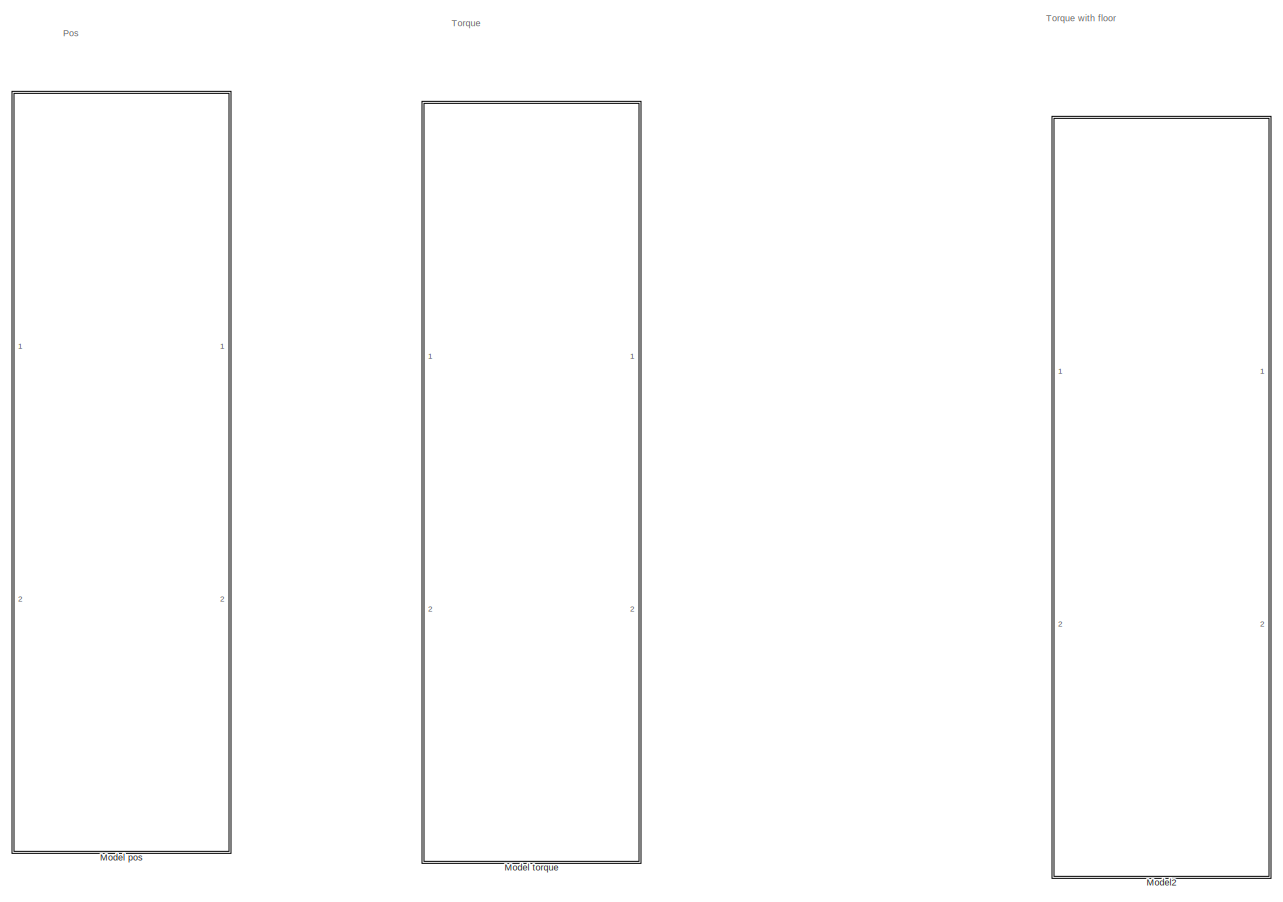
[diagram: root canvas - part 1/1, most of the canvas]
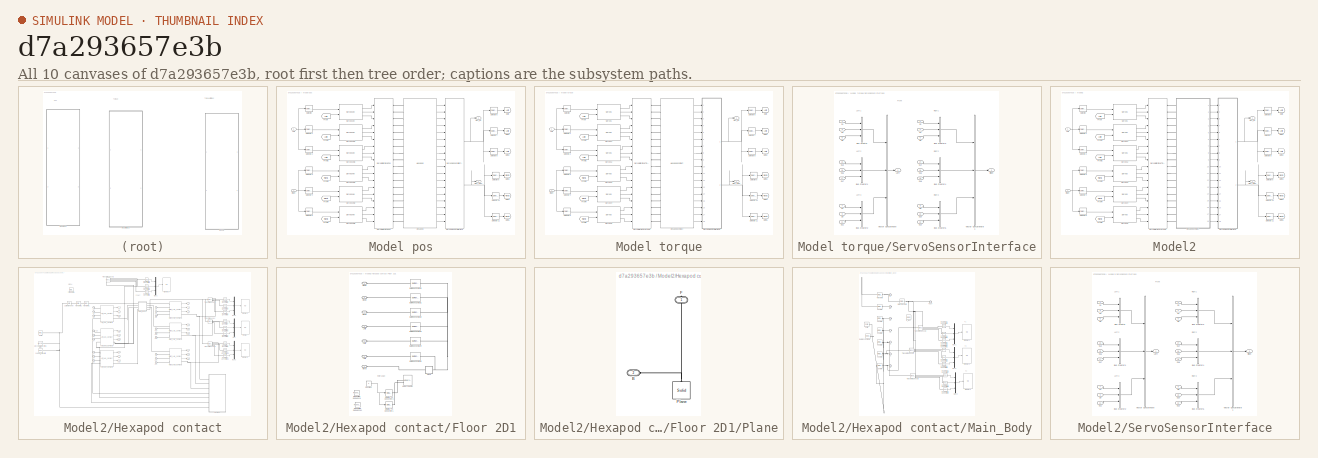
[diagram: thumbnail index - all 10 canvases of the model, root first then tree order]
MODEL slx_d7a293657e3b
KIND library
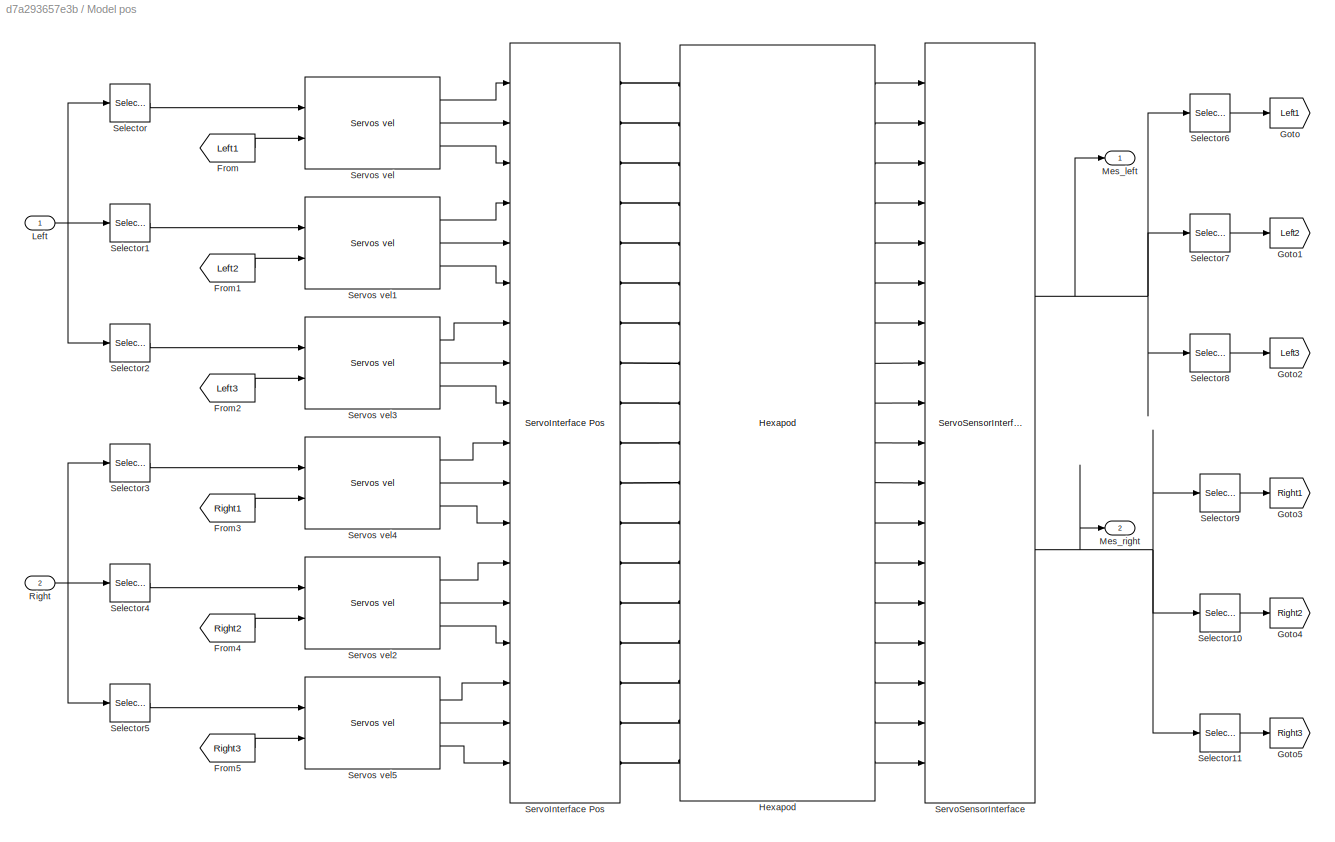
BLOCK [SubSystem] Model pos
  Ports = [2, 2]
  RequestExecContextInheritance = off
BLOCK [From] Model pos/From
  GotoTag = Left1
BLOCK [From] Model pos/From1
  GotoTag = Left2
BLOCK [From] Model pos/From2
  GotoTag = Left3
BLOCK [From] Model pos/From3
  GotoTag = Right1
BLOCK [From] Model pos/From4
  GotoTag = Right2
BLOCK [From] Model pos/From5
  GotoTag = Right3
BLOCK [Goto] Model pos/Goto
  GotoTag = Left1
BLOCK [Goto] Model pos/Goto1
  GotoTag = Left2
BLOCK [Goto] Model pos/Goto2
  GotoTag = Left3
BLOCK [Goto] Model pos/Goto3
  GotoTag = Right1
BLOCK [Goto] Model pos/Goto4
  GotoTag = Right2
BLOCK [Goto] Model pos/Goto5
  GotoTag = Right3
BLOCK [Reference] Model pos/Hexapod  REF=HexapodLib/Hexapod
  Ports = [0, 18, 0, 0, 0, 18]
  SourceBlock = HexapodLib/Hexapod
  SourceType = SubSystem
BLOCK [Inport] Model pos/Left
  IconDisplay = Port number
BLOCK [Outport] Model pos/Mes_left
  IconDisplay = Port number
BLOCK [Outport] Model pos/Mes_right
  IconDisplay = Port number
  Port = 2
BLOCK [Inport] Model pos/Right
  IconDisplay = Port number
  Port = 2
BLOCK [Selector] Model pos/Selector
  IndexMode = Zero-based
  Indices = 0
  InputPortWidth = 3
  Ports = [1, 1]
BLOCK [Selector] Model pos/Selector1
  IndexMode = Zero-based
  InputPortWidth = 3
  Ports = [1, 1]
BLOCK [Selector] Model pos/Selector10
  IndexMode = Zero-based
  InputPortWidth = 3
  Ports = [1, 1]
BLOCK [Selector] Model pos/Selector11
  IndexMode = Zero-based
  Indices = 2
  InputPortWidth = 3
  Ports = [1, 1]
BLOCK [Selector] Model pos/Selector2
  IndexMode = Zero-based
  Indices = 2
  InputPortWidth = 3
  Ports = [1, 1]
BLOCK [Selector] Model pos/Selector3
  IndexMode = Zero-based
  Indices = 0
  InputPortWidth = 3
  Ports = [1, 1]
BLOCK [Selector] Model pos/Selector4
  IndexMode = Zero-based
  InputPortWidth = 3
  Ports = [1, 1]
BLOCK [Selector] Model pos/Selector5
  IndexMode = Zero-based
  Indices = 2
  InputPortWidth = 3
  Ports = [1, 1]
BLOCK [Selector] Model pos/Selector6
  IndexMode = Zero-based
  Indices = 0
  InputPortWidth = 3
  Ports = [1, 1]
BLOCK [Selector] Model pos/Selector7
  IndexMode = Zero-based
  InputPortWidth = 3
  Ports = [1, 1]
BLOCK [Selector] Model pos/Selector8
  IndexMode = Zero-based
  Indices = 2
  InputPortWidth = 3
  Ports = [1, 1]
BLOCK [Selector] Model pos/Selector9
  IndexMode = Zero-based
  Indices = 0
  InputPortWidth = 3
  Ports = [1, 1]
BLOCK [Reference] Model pos/ServoInterface Pos  REF=HexapodLib/ServoInterface Pos
  Filter_time = 0.001
  Ports = [18, 0, 0, 0, 0, 0, 18]
  SourceBlock = HexapodLib/ServoInterface Pos
BLOCK [Reference] Model pos/ServoSensorInterface  REF=HexapodLib/ServoSensorInterface
  Ports = [18, 2]
  SourceBlock = HexapodLib/ServoSensorInterface
  SourceType = SubSystem
BLOCK [Reference] Model pos/Servos vel  REF=ServoModel/Servos vel
  Ports = [2, 3]
  SourceBlock = ServoModel/Servos vel
  SourceType = SubSystem
BLOCK [Reference] Model pos/Servos vel1  REF=ServoModel/Servos vel
  Ports = [2, 3]
  SourceBlock = ServoModel/Servos vel
  SourceType = SubSystem
BLOCK [Reference] Model pos/Servos vel2  REF=ServoModel/Servos vel
  Ports = [2, 3]
  SourceBlock = ServoModel/Servos vel
  SourceType = SubSystem
BLOCK [Reference] Model pos/Servos vel3  REF=ServoModel/Servos vel
  Ports = [2, 3]
  SourceBlock = ServoModel/Servos vel
  SourceType = SubSystem
BLOCK [Reference] Model pos/Servos vel4  REF=ServoModel/Servos vel
  Ports = [2, 3]
  SourceBlock = ServoModel/Servos vel
  SourceType = SubSystem
BLOCK [Reference] Model pos/Servos vel5  REF=ServoModel/Servos vel
  Ports = [2, 3]
  SourceBlock = ServoModel/Servos vel
  SourceType = SubSystem
BLOCK [SubSystem] Model torque
  Ports = [2, 2]
  RequestExecContextInheritance = off
BLOCK [From] Model torque/From
  GotoTag = Left1
BLOCK [From] Model torque/From1
  GotoTag = Left2
BLOCK [From] Model torque/From2
  GotoTag = Left3
BLOCK [From] Model torque/From3
  GotoTag = Right1
BLOCK [From] Model torque/From4
  GotoTag = Right2
BLOCK [From] Model torque/From5
  GotoTag = Right3
BLOCK [Goto] Model torque/Goto
  GotoTag = Left1
BLOCK [Goto] Model torque/Goto1
  GotoTag = Left2
BLOCK [Goto] Model torque/Goto2
  GotoTag = Left3
BLOCK [Goto] Model torque/Goto3
  GotoTag = Right1
BLOCK [Goto] Model torque/Goto4
  GotoTag = Right2
BLOCK [Goto] Model torque/Goto5
  GotoTag = Right3
BLOCK [Reference] Model torque/Hexapod contact  REF=HexapodLib/Hexapod contact
  Ports = [0, 18, 0, 0, 0, 18]
  SourceBlock = HexapodLib/Hexapod contact
  SourceType = SubSystem
BLOCK [Inport] Model torque/Left
  IconDisplay = Port number
BLOCK [Outport] Model torque/Mes_left
  IconDisplay = Port number
BLOCK [Outport] Model torque/Mes_right
  IconDisplay = Port number
  Port = 2
BLOCK [Inport] Model torque/Right
  IconDisplay = Port number
  Port = 2
BLOCK [Selector] Model torque/Selector
  IndexMode = Zero-based
  Indices = 0
  InputPortWidth = 3
  Ports = [1, 1]
BLOCK [Selector] Model torque/Selector1
  IndexMode = Zero-based
  InputPortWidth = 3
  Ports = [1, 1]
BLOCK [Selector] Model torque/Selector10
  IndexMode = Zero-based
  InputPortWidth = 3
  Ports = [1, 1]
BLOCK [Selector] Model torque/Selector11
  IndexMode = Zero-based
  Indices = 2
  InputPortWidth = 3
  Ports = [1, 1]
BLOCK [Selector] Model torque/Selector2
  IndexMode = Zero-based
  Indices = 2
  InputPortWidth = 3
  Ports = [1, 1]
BLOCK [Selector] Model torque/Selector3
  IndexMode = Zero-based
  Indices = 0
  InputPortWidth = 3
  Ports = [1, 1]
BLOCK [Selector] Model torque/Selector4
  IndexMode = Zero-based
  InputPortWidth = 3
  Ports = [1, 1]
BLOCK [Selector] Model torque/Selector5
  IndexMode = Zero-based
  Indices = 2
  InputPortWidth = 3
  Ports = [1, 1]
BLOCK [Selector] Model torque/Selector6
  IndexMode = Zero-based
  Indices = 0
  InputPortWidth = 3
  Ports = [1, 1]
BLOCK [Selector] Model torque/Selector7
  IndexMode = Zero-based
  InputPortWidth = 3
  Ports = [1, 1]
BLOCK [Selector] Model torque/Selector8
  IndexMode = Zero-based
  Indices = 2
  InputPortWidth = 3
  Ports = [1, 1]
BLOCK [Selector] Model torque/Selector9
  IndexMode = Zero-based
  Indices = 0
  InputPortWidth = 3
  Ports = [1, 1]
BLOCK [Reference] Model torque/ServoInterface Torque  REF=HexapodLib/ServoInterface Torque
  Ports = [18, 0, 0, 0, 0, 0, 18]
  SourceBlock = HexapodLib/ServoInterface Torque
  SourceType = SubSystem
BLOCK [SubSystem] Model torque/ServoSensorInterface
  Ports = [18, 2]
  RequestExecContextInheritance = off
BLOCK [BusCreator] Model torque/ServoSensorInterface/Bus Creator
  DisplayOption = bar
  Inputs = 3
  NonVirtualBus = on
  OutDataTypeStr = Bus: Leg_mes
  Ports = [3, 1]
BLOCK [BusCreator] Model torque/ServoSensorInterface/Bus Creator1
  DisplayOption = bar
  Inputs = 3
  NonVirtualBus = on
  OutDataTypeStr = Bus: Leg_mes
  Ports = [3, 1]
BLOCK [BusCreator] Model torque/ServoSensorInterface/Bus Creator2
  DisplayOption = bar
  Inputs = 3
  NonVirtualBus = on
  OutDataTypeStr = Bus: Leg_mes
  Ports = [3, 1]
BLOCK [BusCreator] Model torque/ServoSensorInterface/Bus Creator3
  DisplayOption = bar
  Inputs = 3
  NonVirtualBus = on
  OutDataTypeStr = Bus: Leg_mes
  Ports = [3, 1]
BLOCK [BusCreator] Model torque/ServoSensorInterface/Bus Creator4
  DisplayOption = bar
  Inputs = 3
  NonVirtualBus = on
  OutDataTypeStr = Bus: Leg_mes
  Ports = [3, 1]
BLOCK [BusCreator] Model torque/ServoSensorInterface/Bus Creator5
  DisplayOption = bar
  Inputs = 3
  NonVirtualBus = on
  OutDataTypeStr = Bus: Leg_mes
  Ports = [3, 1]
BLOCK [Outport] Model torque/ServoSensorInterface/Left
  IconDisplay = Port number
BLOCK [Outport] Model torque/ServoSensorInterface/Right
  IconDisplay = Port number
  Port = 2
BLOCK [Inport] Model torque/ServoSensorInterface/S1
  IconDisplay = Port number
BLOCK [Inport] Model torque/ServoSensorInterface/S10
  IconDisplay = Port number
  Port = 10
BLOCK [Inport] Model torque/ServoSensorInterface/S11
  IconDisplay = Port number
  Port = 11
BLOCK [Inport] Model torque/ServoSensorInterface/S12
  IconDisplay = Port number
  Port = 12
BLOCK [Inport] Model torque/ServoSensorInterface/S13
  IconDisplay = Port number
  Port = 13
BLOCK [Inport] Model torque/ServoSensorInterface/S14
  IconDisplay = Port number
  Port = 14
BLOCK [Inport] Model torque/ServoSensorInterface/S15
  IconDisplay = Port number
  Port = 15
BLOCK [Inport] Model torque/ServoSensorInterface/S16
  IconDisplay = Port number
  Port = 16
BLOCK [Inport] Model torque/ServoSensorInterface/S17
  IconDisplay = Port number
  Port = 17
BLOCK [Inport] Model torque/ServoSensorInterface/S18
  IconDisplay = Port number
  Port = 18
BLOCK [Inport] Model torque/ServoSensorInterface/S2
  IconDisplay = Port number
  Port = 2
BLOCK [Inport] Model torque/ServoSensorInterface/S3
  IconDisplay = Port number
  Port = 3
BLOCK [Inport] Model torque/ServoSensorInterface/S4
  IconDisplay = Port number
  Port = 4
BLOCK [Inport] Model torque/ServoSensorInterface/S5
  IconDisplay = Port number
  Port = 5
BLOCK [Inport] Model torque/ServoSensorInterface/S6
  IconDisplay = Port number
  Port = 6
BLOCK [Inport] Model torque/ServoSensorInterface/S7
  IconDisplay = Port number
  Port = 7
BLOCK [Inport] Model torque/ServoSensorInterface/S8
  IconDisplay = Port number
  Port = 8
BLOCK [Inport] Model torque/ServoSensorInterface/S9
  IconDisplay = Port number
  Port = 9
BLOCK [Concatenate] Model torque/ServoSensorInterface/Vector Concatenate
  ConcatenateDimension = 2
  NumInputs = 3
  Ports = [3, 1]
BLOCK [Concatenate] Model torque/ServoSensorInterface/Vector Concatenate1
  ConcatenateDimension = 2
  NumInputs = 3
  Ports = [3, 1]
BLOCK [Reference] Model torque/Servos  REF=ServoModel/Servos
  Ports = [2, 3]
  SourceBlock = ServoModel/Servos
  SourceType = SubSystem
BLOCK [Reference] Model torque/Servos1  REF=ServoModel/Servos
  Ports = [2, 3]
  SourceBlock = ServoModel/Servos
  SourceType = SubSystem
BLOCK [Reference] Model torque/Servos2  REF=ServoModel/Servos
  Ports = [2, 3]
  SourceBlock = ServoModel/Servos
  SourceType = SubSystem
BLOCK [Reference] Model torque/Servos3  REF=ServoModel/Servos
  Ports = [2, 3]
  SourceBlock = ServoModel/Servos
  SourceType = SubSystem
BLOCK [Reference] Model torque/Servos4  REF=ServoModel/Servos
  Ports = [2, 3]
  SourceBlock = ServoModel/Servos
  SourceType = SubSystem
BLOCK [Reference] Model torque/Servos5  REF=ServoModel/Servos
  Ports = [2, 3]
  SourceBlock = ServoModel/Servos
  SourceType = SubSystem
BLOCK [SubSystem] Model2
  Ports = [2, 2]
  RequestExecContextInheritance = off
BLOCK [From] Model2/From
  GotoTag = Left1
BLOCK [From] Model2/From1
  GotoTag = Left2
BLOCK [From] Model2/From2
  GotoTag = Left3
BLOCK [From] Model2/From3
  GotoTag = Right1
BLOCK [From] Model2/From4
  GotoTag = Right2
BLOCK [From] Model2/From5
  GotoTag = Right3
BLOCK [Goto] Model2/Goto
  GotoTag = Left1
BLOCK [Goto] Model2/Goto1
  GotoTag = Left2
BLOCK [Goto] Model2/Goto2
  GotoTag = Left3
BLOCK [Goto] Model2/Goto3
  GotoTag = Right1
BLOCK [Goto] Model2/Goto4
  GotoTag = Right2
BLOCK [Goto] Model2/Goto5
  GotoTag = Right3
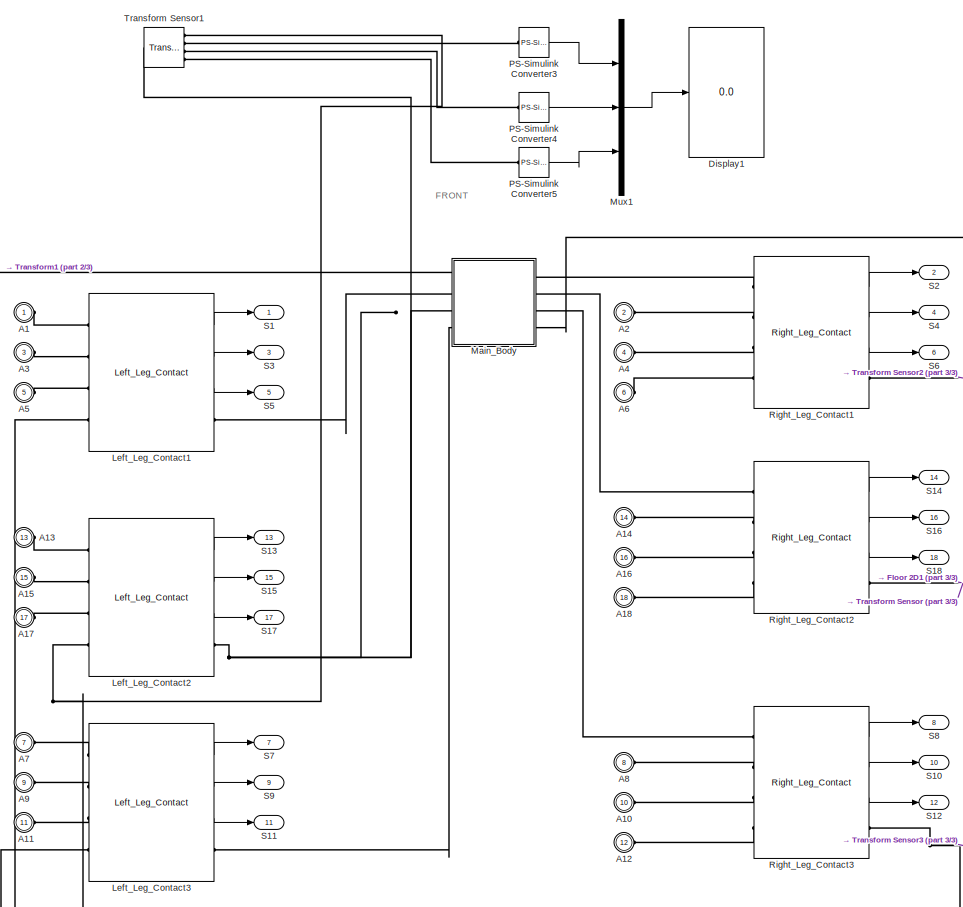
[diagram: Model2/Hexapod contact - part 1/3, central region]
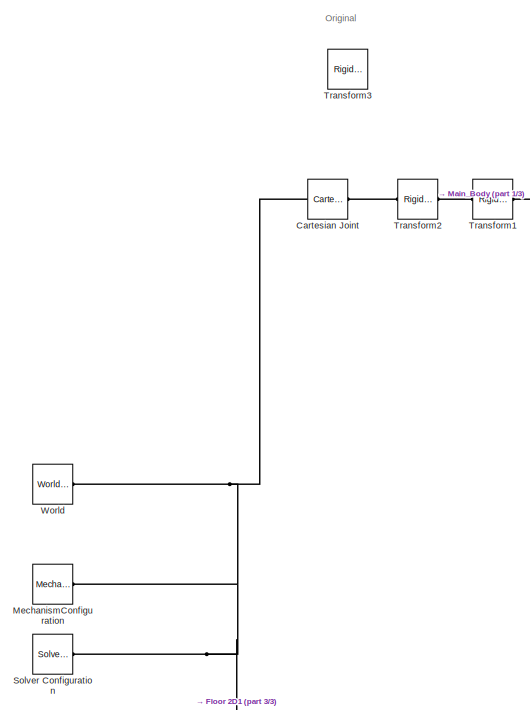
[diagram: Model2/Hexapod contact - part 2/3, top left region]
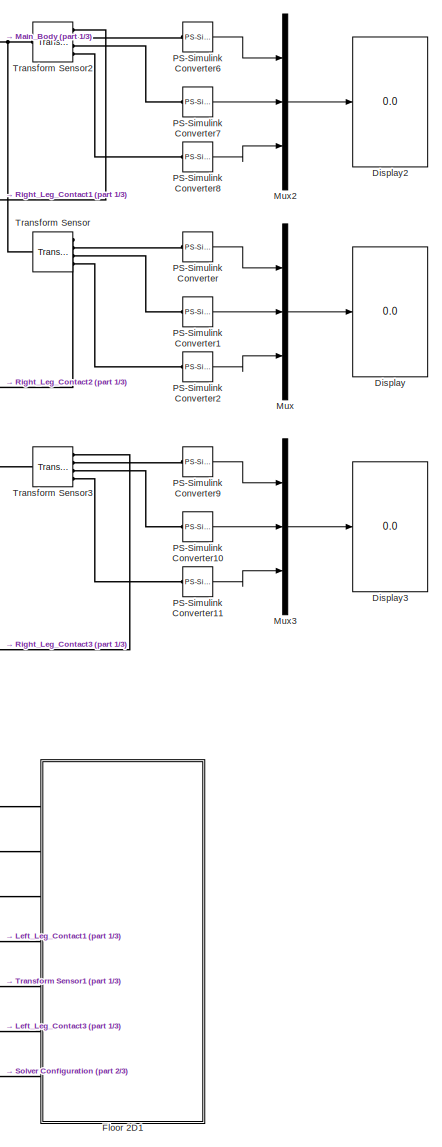
[diagram: Model2/Hexapod contact - part 3/3, right side, full height]
BLOCK [SubSystem] Model2/Hexapod contact
  Ports = [0, 18, 0, 0, 0, 18]
  RequestExecContextInheritance = off
BLOCK [PMIOPort] Model2/Hexapod contact/A1
  Port = 1
  Side = Left
BLOCK [PMIOPort] Model2/Hexapod contact/A10
  Port = 10
  Side = Left
BLOCK [PMIOPort] Model2/Hexapod contact/A11
  Port = 11
  Side = Left
BLOCK [PMIOPort] Model2/Hexapod contact/A12
  Port = 12
  Side = Left
BLOCK [PMIOPort] Model2/Hexapod contact/A13
  Port = 13
  Side = Left
BLOCK [PMIOPort] Model2/Hexapod contact/A14
  Port = 14
  Side = Left
BLOCK [PMIOPort] Model2/Hexapod contact/A15
  Port = 15
  Side = Left
BLOCK [PMIOPort] Model2/Hexapod contact/A16
  Port = 16
  Side = Left
BLOCK [PMIOPort] Model2/Hexapod contact/A17
  Port = 17
  Side = Left
BLOCK [PMIOPort] Model2/Hexapod contact/A18
  Port = 18
  Side = Left
BLOCK [PMIOPort] Model2/Hexapod contact/A2
  Port = 2
  Side = Left
BLOCK [PMIOPort] Model2/Hexapod contact/A3
  Port = 3
  Side = Left
BLOCK [PMIOPort] Model2/Hexapod contact/A4
  Port = 4
  Side = Left
BLOCK [PMIOPort] Model2/Hexapod contact/A5
  Port = 5
  Side = Left
BLOCK [PMIOPort] Model2/Hexapod contact/A6
  Port = 6
  Side = Left
BLOCK [PMIOPort] Model2/Hexapod contact/A7
  Port = 7
  Side = Left
BLOCK [PMIOPort] Model2/Hexapod contact/A8
  Port = 8
  Side = Left
BLOCK [PMIOPort] Model2/Hexapod contact/A9
  Port = 9
  Side = Left
BLOCK [Reference] Model2/Hexapod contact/Cartesian Joint  REF=sm_lib/Joints/Cartesian
Joint
  BlockFunction = simmechanics.library.joints.cartesian_joint
  ClassName = CartesianJoint
  CompositeWrenchDir = FollowerOnBase
  CompositeWrenchFrame = BaseFrame
  LogSimulationData = off
  Ports = [0, 0, 0, 0, 0, 1, 1]
  PxDampingCoefficient = 0
  PxDampingCoefficientUnits = N/(m/s)
  PxEquilibriumPosition = 0
  PxEquilibriumPositionUnits = m
  PxMotionActuationMode = ComputedMotion
  PxPositionTargetPriority = High
  PxPositionTargetSpecify = off
  PxPositionTargetValue = 0
  PxPositionTargetValueUnits = m
  PxSenseAcceleration = off
  PxSensePosition = off
  PxSenseTorqueForce = off
  PxSenseVelocity = off
  PxSpringStiffness = 0
  PxSpringStiffnessUnits = N/m
  PxTorqueActuationMode = NoTorque
  PxVelocityTargetPriority = High
  PxVelocityTargetSpecify = off
  PxVelocityTargetValue = 0
  PxVelocityTargetValueUnits = m/s
  PyDampingCoefficient = 0
  PyDampingCoefficientUnits = N/(m/s)
  PyEquilibriumPosition = 0
  PyEquilibriumPositionUnits = m
  PyMotionActuationMode = ComputedMotion
  PyPositionTargetPriority = High
  PyPositionTargetSpecify = off
  PyPositionTargetValue = 0
  PyPositionTargetValueUnits = m
  PySenseAcceleration = off
  PySensePosition = off
  PySenseTorqueForce = off
  PySenseVelocity = off
  PySpringStiffness = 0
  PySpringStiffnessUnits = N/m
  PyTorqueActuationMode = NoTorque
  PyVelocityTargetPriority = High
  PyVelocityTargetSpecify = off
  PyVelocityTargetValue = 0
  PyVelocityTargetValueUnits = m/s
  PzDampingCoefficient = 0
  PzDampingCoefficientUnits = N/(m/s)
  PzEquilibriumPosition = 0
  PzEquilibriumPositionUnits = m
  PzMotionActuationMode = ComputedMotion
  PzPositionTargetPriority = High
  PzPositionTargetSpecify = off
  PzPositionTargetValue = 0
  PzPositionTargetValueUnits = m
  PzSenseAcceleration = off
  PzSensePosition = off
  PzSenseTorqueForce = off
  PzSenseVelocity = off
  PzSpringStiffness = 0
  PzSpringStiffnessUnits = N/m
  PzTorqueActuationMode = NoTorque
  PzVelocityTargetPriority = High
  PzVelocityTargetSpecify = off
  PzVelocityTargetValue = 0
  PzVelocityTargetValueUnits = m/s
  SenseConstraintForce = off
  SenseConstraintForceX = off
  SenseConstraintForceY = off
  SenseConstraintForceZ = off
  SenseConstraintTorque = off
  SenseConstraintTorqueX = off
  SenseConstraintTorqueY = off
  SenseConstraintTorqueZ = off
  SenseTotalForce = off
  SenseTotalForceX = off
  SenseTotalForceY = off
  SenseTotalForceZ = off
  SenseTotalTorque = off
  SenseTotalTorqueX = off
  SenseTotalTorqueY = off
  SenseTotalTorqueZ = off
  SourceBlock = sm_lib/Joints/Cartesian\nJoint
  SourceType = Cartesian\nJoint
BLOCK [Display] Model2/Hexapod contact/Display
  Decimation = 1
  Ports = [1]
BLOCK [Display] Model2/Hexapod contact/Display1
  Decimation = 1
  Ports = [1]
BLOCK [Display] Model2/Hexapod contact/Display2
  Decimation = 1
  Ports = [1]
BLOCK [Display] Model2/Hexapod contact/Display3
  Decimation = 1
  Ports = [1]
BLOCK [SubSystem] Model2/Hexapod contact/Floor 2D1
  Ports = [0, 0, 0, 0, 0, 7]
  RequestExecContextInheritance = off
BLOCK [Reference] Model2/Hexapod contact/Floor 2D1/Ball Plane Contact1  REF=HexapodLib/Ball Plane 
Contact5
  Dpen = 100
  Kpen = 100000
  Ports = [0, 0, 0, 0, 0, 1, 1]
  SourceBlock = HexapodLib/Ball Plane \nContact5
  hpla = [2.5 2.5 0.05]
  mustat = 1
  pz0 = zinit
  rsph = sprad
  vthr = fvel
BLOCK [Reference] Model2/Hexapod contact/Floor 2D1/Ball Plane Contact2  REF=HexapodLib/Ball Plane 
Contact5
  Dpen = 100
  Kpen = 100000
  Ports = [0, 0, 0, 0, 0, 1, 1]
  SourceBlock = HexapodLib/Ball Plane \nContact5
  hpla = [2.5 2.5 0.05]
  mustat = 1
  pz0 = zinit
  rsph = sprad
  vthr = fvel
BLOCK [Reference] Model2/Hexapod contact/Floor 2D1/Ball Plane Contact3  REF=HexapodLib/Ball Plane 
Contact5
  Dpen = 100
  Kpen = 100000
  Ports = [0, 0, 0, 0, 0, 1, 1]
  SourceBlock = HexapodLib/Ball Plane \nContact5
  hpla = [2.5 2.5 0.05]
  mustat = 1
  pz0 = zinit
  rsph = sprad
  vthr = fvel
BLOCK [Reference] Model2/Hexapod contact/Floor 2D1/Ball Plane Contact4  REF=HexapodLib/Ball Plane 
Contact5
  Dpen = 100
  Kpen = 100000
  Ports = [0, 0, 0, 0, 0, 1, 1]
  SourceBlock = HexapodLib/Ball Plane \nContact5
  hpla = [2.5 2.5 0.05]
  mustat = 1
  pz0 = zinit
  rsph = sprad
  vthr = fvel
BLOCK [Reference] Model2/Hexapod contact/Floor 2D1/Ball Plane Contact5  REF=HexapodLib/Ball Plane 
Contact5
  Dpen = 100
  Kpen = 100000
  Ports = [0, 0, 0, 0, 0, 1, 1]
  SourceBlock = HexapodLib/Ball Plane \nContact5
  hpla = [2.5 2.5 0.05]
  mustat = 1
  pz0 = zinit
  rsph = sprad
  vthr = fvel
BLOCK [Reference] Model2/Hexapod contact/Floor 2D1/Ball Plane Contact6  REF=HexapodLib/Ball Plane 
Contact5
  Dpen = 100
  Kpen = 100000
  Ports = [0, 0, 0, 0, 0, 1, 1]
  SourceBlock = HexapodLib/Ball Plane \nContact5
  hpla = [2.5 2.5 0.05]
  mustat = 1
  pz0 = zinit
  rsph = sprad
  vthr = fvel
BLOCK [Constant] Model2/Hexapod contact/Floor 2D1/Constant
  Commented = on
  Value = 0
BLOCK [PMIOPort] Model2/Hexapod contact/Floor 2D1/Left1
  Port = 6
  Side = Left
BLOCK [PMIOPort] Model2/Hexapod contact/Floor 2D1/Left2
  Port = 5
  Side = Left
BLOCK [PMIOPort] Model2/Hexapod contact/Floor 2D1/Left3
  Port = 4
  Side = Left
BLOCK [SubSystem] Model2/Hexapod contact/Floor 2D1/Plane
  Ports = [0, 0, 0, 0, 0, 1, 1]
  RequestExecContextInheritance = off
BLOCK [PMIOPort] Model2/Hexapod contact/Floor 2D1/Plane/B
  Port = 2
  Side = Left
BLOCK [PMIOPort] Model2/Hexapod contact/Floor 2D1/Plane/F
  Port = 1
  Side = Right
BLOCK [Reference] Model2/Hexapod contact/Floor 2D1/Plane/Plane  REF=sm_lib/Body Elements/Solid
  BlockFunction = simmechanics.library.body_elements.solid
  BrickDimensionUnits = m
  BrickDimensions = [2.5 2.5 0.05]
  CenterOfMass = [0 0 0]
  CenterOfMassUnits = m
  ClassName = Solid
  CylinderLength = 1
  CylinderLengthUnits = m
  CylinderRadius = 1
  CylinderRadiusUnits = m
  Density = 1000
  DensityBased = on
  DensityUnits = kg/(m^3)
  EllipsoidRadii = [1 1 1]
  EllipsoidRadiiUnits = m
  ExtGeomFileType = STL
  ExtGeomFileUnits = m
  ExtrusionCrossSection = [1 1; -1 1; -1 -1; 1 -1]
  ExtrusionCrossSectionUnits = m
  ExtrusionLength = 1
  ExtrusionLengthUnits = m
  GeometryShape = Brick
  GraphicAmbientColor = [0.15 0.15 0.15 1.0]
  GraphicDiffuseColor = [0.5 0.5 0.5]
  GraphicEmissiveColor = [0.0 0.0 0.0 1.0]
  GraphicOpacity = 1.0
  GraphicShininess = 75
  GraphicSpecularColor = [0.5 0.5 0.5 1.0]
  GraphicType = FromGeometry
  GraphicVisPropType = SimpleVisualProperties
  InertiaType = CalculateFromGeometry
  LogSimulationData = off
  MarkerShape = Sphere
  MarkerSize = 10
  MarkerSizeUnits = m
  Mass = 1
  MassUnits = kg
  MomentsOfInertia = [1 1 1]
  MomentsOfInertiaUnits = kg*m^2
  PolygonNumSides = 3
  PolygonOuterRadius = 1
  PolygonOuterRadiusUnits = m
  Ports = [0, 0, 0, 0, 0, 0, 1]
  ProductsOfInertia = [0 0 0]
  ProductsOfInertiaUnits = kg*m^2
  RectangleSize = [1 1]
  RectangleSizeUnits = m
  RevolutionAngle = 180
  RevolutionAngleUnits = deg
  RevolutionCrossSection = [1 1; 1 -1; 2 -1; 2 1]
  RevolutionCrossSectionUnits = m
  RevolutionExtent = Full
  SourceBlock = sm_lib/Body Elements/Solid
  SourceType = Solid
  SphereRadius = 1
  SphereRadiusUnits = m
BLOCK [Reference] Model2/Hexapod contact/Floor 2D1/Repeating Sequence  REF=simulink/Sources/Repeating
Sequence
  Ports = [0, 1]
  SourceBlock = simulink/Sources/Repeating\nSequence
  SourceType = Repeating table
  rep_seq_t = [0 2 2.5 4 5 7.7 8.2 20]
  rep_seq_y = -0.03*[0 0 1 1 -1 -1 0 0]
BLOCK [Reference] Model2/Hexapod contact/Floor 2D1/Repeating Sequence1  REF=simulink/Sources/Repeating
Sequence
  Ports = [0, 1]
  SourceBlock = simulink/Sources/Repeating\nSequence
  SourceType = Repeating table
  rep_seq_t = [0 7 7.5 9 10 13 13.5 20]
  rep_seq_y = -0.03*[0 0 1 1 -1 -1 0 0]
BLOCK [PMIOPort] Model2/Hexapod contact/Floor 2D1/Right1
  Port = 1
  Side = Left
BLOCK [PMIOPort] Model2/Hexapod contact/Floor 2D1/Right2
  Port = 2
  Side = Left
BLOCK [PMIOPort] Model2/Hexapod contact/Floor 2D1/Right3
  Port = 3
  Side = Left
BLOCK [Reference] Model2/Hexapod contact/Floor 2D1/Simulink-PS Converter1  REF=nesl_utility/Simulink-PS
Converter
  AffineConversion = off
  Commented = on
  Frequencies = []
  InputFilterTimeConstant = 0.1
  InputFiltering = on
  LeftPortType = input
  NoiseDistribution = none
  NoiseParameters = []
  PhysicalDomain = network_engine_domain
  Ports = [1, 0, 0, 0, 0, 0, 1]
  PseudoPeriodic = off
  RightPortType = output
  SimscapeFilterOrder = 2
  SourceBlock = nesl_utility/Simulink-PS\nConverter
  SourceType = Simulink-PS\nConverter
  SubClassName = ps_input
  UdotUserProvided = 2
  Unit = 1
BLOCK [Reference] Model2/Hexapod contact/Floor 2D1/Simulink-PS Converter3  REF=nesl_utility/Simulink-PS
Converter
  AffineConversion = off
  Commented = on
  Frequencies = []
  InputFilterTimeConstant = 0.1
  InputFiltering = on
  LeftPortType = input
  NoiseDistribution = none
  NoiseParameters = []
  PhysicalDomain = network_engine_domain
  Ports = [1, 0, 0, 0, 0, 0, 1]
  PseudoPeriodic = off
  RightPortType = output
  SimscapeFilterOrder = 2
  SourceBlock = nesl_utility/Simulink-PS\nConverter
  SourceType = Simulink-PS\nConverter
  SubClassName = ps_input
  UdotUserProvided = 2
  Unit = 1
BLOCK [Reference] Model2/Hexapod contact/Floor 2D1/Universal Joint  REF=sm_lib/Joints/Universal
Joint
  BlockFunction = simmechanics.library.joints.universal_joint
  ClassName = UniversalJoint
  Commented = on
  CompositeWrenchDir = FollowerOnBase
  CompositeWrenchFrame = BaseFrame
  LogSimulationData = off
  Ports = [0, 0, 0, 0, 0, 3, 1]
  RxDampingCoefficient = 0
  RxDampingCoefficientUnits = N*m/(deg/s)
  RxEquilibriumPosition = 0
  RxEquilibriumPositionUnits = deg
  RxMotionActuationMode = InputMotion
  RxPositionTargetPriority = High
  RxPositionTargetSpecify = off
  RxPositionTargetValue = 0
  RxPositionTargetValueUnits = deg
  RxSenseAcceleration = off
  RxSensePosition = off
  RxSenseTorqueForce = off
  RxSenseVelocity = off
  RxSpringStiffness = 0
  RxSpringStiffnessUnits = N*m/deg
  RxTorqueActuationMode = ComputedTorque
  RxVelocityTargetPriority = High
  RxVelocityTargetSpecify = off
  RxVelocityTargetValue = 0
  RxVelocityTargetValueUnits = deg/s
  RyDampingCoefficient = 0
  RyDampingCoefficientUnits = N*m/(deg/s)
  RyEquilibriumPosition = 0
  RyEquilibriumPositionUnits = deg
  RyMotionActuationMode = InputMotion
  RyPositionTargetPriority = High
  RyPositionTargetSpecify = off
  RyPositionTargetValue = 0
  RyPositionTargetValueUnits = deg
  RySenseAcceleration = off
  RySensePosition = off
  RySenseTorqueForce = off
  RySenseVelocity = off
  RySpringStiffness = 0
  RySpringStiffnessUnits = N*m/deg
  RyTorqueActuationMode = ComputedTorque
  RyVelocityTargetPriority = High
  RyVelocityTargetSpecify = off
  RyVelocityTargetValue = 0
  RyVelocityTargetValueUnits = deg/s
  SenseConstraintForce = off
  SenseConstraintForceX = off
  SenseConstraintForceY = off
  SenseConstraintForceZ = off
  SenseConstraintTorque = off
  SenseConstraintTorqueX = off
  SenseConstraintTorqueY = off
  SenseConstraintTorqueZ = off
  SenseTotalForce = off
  SenseTotalForceX = off
  SenseTotalForceY = off
  SenseTotalForceZ = off
  SenseTotalTorque = off
  SenseTotalTorqueX = off
  SenseTotalTorqueY = off
  SenseTotalTorqueZ = off
  SourceBlock = sm_lib/Joints/Universal\nJoint
  SourceType = Universal\nJoint
BLOCK [PMIOPort] Model2/Hexapod contact/Floor 2D1/World
  Port = 7
  Side = Left
BLOCK [Reference] Model2/Hexapod contact/Left_Leg_Contact1  REF=HexapodLib/Left_Leg_Contact
  FunctionWithSeparateData = off
  GeneratePreprocessorConditionals = off
  Ports = [0, 3, 0, 0, 0, 4, 1]
  ShowPortLabels = FromPortIcon
  SourceBlock = HexapodLib/Left_Leg_Contact
  SystemSampleTime = -1
BLOCK [Reference] Model2/Hexapod contact/Left_Leg_Contact2  REF=HexapodLib/Left_Leg_Contact
  FunctionWithSeparateData = off
  GeneratePreprocessorConditionals = off
  Ports = [0, 3, 0, 0, 0, 4, 1]
  ShowPortLabels = FromPortIcon
  SourceBlock = HexapodLib/Left_Leg_Contact
  SystemSampleTime = -1
BLOCK [Reference] Model2/Hexapod contact/Left_Leg_Contact3  REF=HexapodLib/Left_Leg_Contact
  FunctionWithSeparateData = off
  GeneratePreprocessorConditionals = off
  Ports = [0, 3, 0, 0, 0, 4, 1]
  ShowPortLabels = FromPortIcon
  SourceBlock = HexapodLib/Left_Leg_Contact
  SystemSampleTime = -1
BLOCK [SubSystem] Model2/Hexapod contact/Main_Body
  AncestorBlock = HexapodLib/Main_Body
  Ports = [0, 0, 0, 0, 0, 4, 4]
  RequestExecContextInheritance = off
BLOCK [Display] Model2/Hexapod contact/Main_Body/Display1
  Decimation = 1
  Ports = [1]
BLOCK [Display] Model2/Hexapod contact/Main_Body/Display2
  Decimation = 1
  Ports = [1]
BLOCK [Display] Model2/Hexapod contact/Main_Body/Display3
  Decimation = 1
  Ports = [1]
BLOCK [PMIOPort] Model2/Hexapod contact/Main_Body/F
  Port = 1
  Side = Left
BLOCK [PMIOPort] Model2/Hexapod contact/Main_Body/F1
  Port = 2
  Side = Left
BLOCK [Reference] Model2/Hexapod contact/Main_Body/F1Xform  REF=sm_lib/Frames and
Transforms/Rigid
Transform
  BaseAlignAxisA = +Y
  BaseAlignAxisB = +Z
  BlockFunction = simmechanics.library.frames_transforms.rigid_transform
  ClassName = RigidTransform
  FollAlignAxisA = +X
  FollAlignAxisB = +Y
  LogSimulationData = off
  Ports = [0, 0, 0, 0, 0, 1, 1]
  RotationAngle = 2.3561944901923448
  RotationAngleUnits = rad
  RotationArbitraryAxis = [-5.0947287514427085e-14 -3.4119027764489725e-14 -1]
  RotationMatrix = [1 0 0; 0 1 0; 0 0 1]
  RotationMethod = ArbitraryAxis
  RotationStandardAxis = +Z
  SourceBlock = sm_lib/Frames and\nTransforms/Rigid\nTransform
  SourceType = Rigid\nTransform
  TranslationCartesianOffset = [60.910077554195617 -121.91007755419609 -2.5999999999923125]
  TranslationLengthUnit = mm
  TranslationMethod = Cartesian
  TranslationROffset = 0
  TranslationROffsetUnits = m
  TranslationStandardAxis = +Z
  TranslationStandardOffset = 0
  TranslationThetaOffset = 0
  TranslationThetaOffsetUnits = deg
  TranslationZOffset = 0
  TranslationZOffsetUnits = m
BLOCK [PMIOPort] Model2/Hexapod contact/Main_Body/F2
  Port = 3
  Side = Left
BLOCK [Reference] Model2/Hexapod contact/Main_Body/F2Xform  REF=sm_lib/Frames and
Transforms/Rigid
Transform
  BaseAlignAxisA = +Y
  BaseAlignAxisB = +Z
  BlockFunction = simmechanics.library.frames_transforms.rigid_transform
  ClassName = RigidTransform
  FollAlignAxisA = +X
  FollAlignAxisB = +Y
  LogSimulationData = off
  Ports = [0, 0, 0, 0, 0, 1, 1]
  RotationAngle = 1.5707963267948968
  RotationAngleUnits = rad
  RotationArbitraryAxis = [-7.8558330123970482e-14 -1.5711666024794097e-14 -1]
  RotationMatrix = [1 0 0; 0 1 0; 0 0 1]
  RotationMethod = ArbitraryAxis
  RotationStandardAxis = +Z
  SourceBlock = sm_lib/Frames and\nTransforms/Rigid\nTransform
  SourceType = Rigid\nTransform
  TranslationCartesianOffset = [103.49999999999983 0 -2.6000000000064678]
  TranslationLengthUnit = mm
  TranslationMethod = Cartesian
  TranslationROffset = 0
  TranslationROffsetUnits = m
  TranslationStandardAxis = +Z
  TranslationStandardOffset = 0
  TranslationThetaOffset = 0
  TranslationThetaOffsetUnits = deg
  TranslationZOffset = 0
  TranslationZOffsetUnits = m
BLOCK [PMIOPort] Model2/Hexapod contact/Main_Body/F3
  Port = 4
  Side = Left
BLOCK [Reference] Model2/Hexapod contact/Main_Body/F3Xform  REF=sm_lib/Frames and
Transforms/Rigid
Transform
  BaseAlignAxisA = +Y
  BaseAlignAxisB = +Z
  BlockFunction = simmechanics.library.frames_transforms.rigid_transform
  ClassName = RigidTransform
  FollAlignAxisA = +X
  FollAlignAxisB = +Y
  LogSimulationData = off
  Ports = [0, 0, 0, 0, 0, 1, 1]
  RotationAngle = 0.7853981633974495
  RotationAngleUnits = rad
  RotationArbitraryAxis = [-1.4521728366319145e-13 2.8727636334686562e-14 -1]
  RotationMatrix = [1 0 0; 0 1 0; 0 0 1]
  RotationMethod = ArbitraryAxis
  RotationStandardAxis = +Z
  SourceBlock = sm_lib/Frames and\nTransforms/Rigid\nTransform
  SourceType = Rigid\nTransform
  TranslationCartesianOffset = [60.910077554195631 121.91007755419552 -2.6000000000152843]
  TranslationLengthUnit = mm
  TranslationMethod = Cartesian
  TranslationROffset = 0
  TranslationROffsetUnits = m
  TranslationStandardAxis = +Z
  TranslationStandardOffset = 0
  TranslationThetaOffset = 0
  TranslationThetaOffsetUnits = deg
  TranslationZOffset = 0
  TranslationZOffsetUnits = m
BLOCK [PMIOPort] Model2/Hexapod contact/Main_Body/F4
  Port = 5
  Side = Right
BLOCK [Reference] Model2/Hexapod contact/Main_Body/F4Xform  REF=sm_lib/Frames and
Transforms/Rigid
Transform
  BaseAlignAxisA = +Y
  BaseAlignAxisB = +Z
  BlockFunction = simmechanics.library.frames_transforms.rigid_transform
  ClassName = RigidTransform
  FollAlignAxisA = +X
  FollAlignAxisB = +Y
  LogSimulationData = off
  Ports = [0, 0, 0, 0, 0, 1, 1]
  RotationAngle = 0.78539816339744906
  RotationAngleUnits = rad
  RotationArbitraryAxis = [-8.2370619564015128e-14 1.229976324834512e-13 1]
  RotationMatrix = [1 0 0; 0 1 0; 0 0 1]
  RotationMethod = ArbitraryAxis
  RotationStandardAxis = +Z
  SourceBlock = sm_lib/Frames and\nTransforms/Rigid\nTransform
  SourceType = Rigid\nTransform
  TranslationCartesianOffset = [-60.910077554195958 121.91007755419555 -2.6000000000076282]
  TranslationLengthUnit = mm
  TranslationMethod = Cartesian
  TranslationROffset = 0
  TranslationROffsetUnits = m
  TranslationStandardAxis = +Z
  TranslationStandardOffset = 0
  TranslationThetaOffset = 0
  TranslationThetaOffsetUnits = deg
  TranslationZOffset = 0
  TranslationZOffsetUnits = m
BLOCK [PMIOPort] Model2/Hexapod contact/Main_Body/F5
  Port = 6
  Side = Right
BLOCK [Reference] Model2/Hexapod contact/Main_Body/F5Xform  REF=sm_lib/Frames and
Transforms/Rigid
Transform
  BaseAlignAxisA = +Y
  BaseAlignAxisB = +Z
  BlockFunction = simmechanics.library.frames_transforms.rigid_transform
  ClassName = RigidTransform
  FollAlignAxisA = +X
  FollAlignAxisB = +Y
  LogSimulationData = off
  Ports = [0, 0, 0, 0, 0, 1, 1]
  RotationAngle = 1.5707963267948968
  RotationAngleUnits = rad
  RotationArbitraryAxis = [-1.5711666024794097e-14 7.8558330123970482e-14 1]
  RotationMatrix = [1 0 0; 0 1 0; 0 0 1]
  RotationMethod = ArbitraryAxis
  RotationStandardAxis = +Z
  SourceBlock = sm_lib/Frames and\nTransforms/Rigid\nTransform
  SourceType = Rigid\nTransform
  TranslationCartesianOffset = [-103.50000000000016 0 -2.5999999999934662]
  TranslationLengthUnit = mm
  TranslationMethod = Cartesian
  TranslationROffset = 0
  TranslationROffsetUnits = m
  TranslationStandardAxis = +Z
  TranslationStandardOffset = 0
  TranslationThetaOffset = 0
  TranslationThetaOffsetUnits = deg
  TranslationZOffset = 0
  TranslationZOffsetUnits = m
BLOCK [PMIOPort] Model2/Hexapod contact/Main_Body/F6
  Port = 7
  Side = Right
BLOCK [Reference] Model2/Hexapod contact/Main_Body/F6Xform  REF=sm_lib/Frames and
Transforms/Rigid
Transform
  BaseAlignAxisA = +Y
  BaseAlignAxisB = +Z
  BlockFunction = simmechanics.library.frames_transforms.rigid_transform
  ClassName = RigidTransform
  FollAlignAxisA = +X
  FollAlignAxisB = +Y
  LogSimulationData = off
  Ports = [0, 0, 0, 0, 0, 1, 1]
  RotationAngle = 2.3561944901923453
  RotationAngleUnits = rad
  RotationArbitraryAxis = [1.1899376584749339e-14 6.0150968384274875e-14 1]
  RotationMatrix = [1 0 0; 0 1 0; 0 0 1]
  RotationMethod = ArbitraryAxis
  RotationStandardAxis = +Z
  SourceBlock = sm_lib/Frames and\nTransforms/Rigid\nTransform
  SourceType = Rigid\nTransform
  TranslationCartesianOffset = [-60.910077554195937 -121.91007755419606 -2.5999999999846568]
  TranslationLengthUnit = mm
  TranslationMethod = Cartesian
  TranslationROffset = 0
  TranslationROffsetUnits = m
  TranslationStandardAxis = +Z
  TranslationStandardOffset = 0
  TranslationThetaOffset = 0
  TranslationThetaOffsetUnits = deg
  TranslationZOffset = 0
  TranslationZOffsetUnits = m
BLOCK [Mux] Model2/Hexapod contact/Main_Body/Mux1
  DisplayOption = bar
  Inputs = 3
  Ports = [3, 1]
BLOCK [Mux] Model2/Hexapod contact/Main_Body/Mux2
  DisplayOption = bar
  Inputs = 3
  Ports = [3, 1]
BLOCK [Mux] Model2/Hexapod contact/Main_Body/Mux3
  DisplayOption = bar
  Inputs = 3
  Ports = [3, 1]
BLOCK [Reference] Model2/Hexapod contact/Main_Body/PS-Simulink Converter1  REF=nesl_utility/PS-Simulink
Converter
  AffineConversion = off
  Frequencies = []
  LeftPortType = input
  PhysicalDomain = network_engine_domain
  Ports = [0, 1, 0, 0, 0, 1]
  PseudoPeriodic = off
  RightPortType = output
  SourceBlock = nesl_utility/PS-Simulink\nConverter
  SourceType = PS-Simulink\nConverter
  SubClassName = ps_output
  Unit = mm
BLOCK [Reference] Model2/Hexapod contact/Main_Body/PS-Simulink Converter2  REF=nesl_utility/PS-Simulink
Converter
  AffineConversion = off
  Frequencies = []
  LeftPortType = input
  PhysicalDomain = network_engine_domain
  Ports = [0, 1, 0, 0, 0, 1]
  PseudoPeriodic = off
  RightPortType = output
  SourceBlock = nesl_utility/PS-Simulink\nConverter
  SourceType = PS-Simulink\nConverter
  SubClassName = ps_output
  Unit = mm
BLOCK [Reference] Model2/Hexapod contact/Main_Body/PS-Simulink Converter3  REF=nesl_utility/PS-Simulink
Converter
  AffineConversion = off
  Frequencies = []
  LeftPortType = input
  PhysicalDomain = network_engine_domain
  Ports = [0, 1, 0, 0, 0, 1]
  PseudoPeriodic = off
  RightPortType = output
  SourceBlock = nesl_utility/PS-Simulink\nConverter
  SourceType = PS-Simulink\nConverter
  SubClassName = ps_output
  Unit = mm
BLOCK [Reference] Model2/Hexapod contact/Main_Body/PS-Simulink Converter4  REF=nesl_utility/PS-Simulink
Converter
  AffineConversion = off
  Frequencies = []
  LeftPortType = input
  PhysicalDomain = network_engine_domain
  Ports = [0, 1, 0, 0, 0, 1]
  PseudoPeriodic = off
  RightPortType = output
  SourceBlock = nesl_utility/PS-Simulink\nConverter
  SourceType = PS-Simulink\nConverter
  SubClassName = ps_output
  Unit = mm
BLOCK [Reference] Model2/Hexapod contact/Main_Body/PS-Simulink Converter5  REF=nesl_utility/PS-Simulink
Converter
  AffineConversion = off
  Frequencies = []
  LeftPortType = input
  PhysicalDomain = network_engine_domain
  Ports = [0, 1, 0, 0, 0, 1]
  PseudoPeriodic = off
  RightPortType = output
  SourceBlock = nesl_utility/PS-Simulink\nConverter
  SourceType = PS-Simulink\nConverter
  SubClassName = ps_output
  Unit = mm
BLOCK [Reference] Model2/Hexapod contact/Main_Body/PS-Simulink Converter6  REF=nesl_utility/PS-Simulink
Converter
  AffineConversion = off
  Frequencies = []
  LeftPortType = input
  PhysicalDomain = network_engine_domain
  Ports = [0, 1, 0, 0, 0, 1]
  PseudoPeriodic = off
  RightPortType = output
  SourceBlock = nesl_utility/PS-Simulink\nConverter
  SourceType = PS-Simulink\nConverter
  SubClassName = ps_output
  Unit = mm
BLOCK [Reference] Model2/Hexapod contact/Main_Body/PS-Simulink Converter7  REF=nesl_utility/PS-Simulink
Converter
  AffineConversion = off
  Frequencies = []
  LeftPortType = input
  PhysicalDomain = network_engine_domain
  Ports = [0, 1, 0, 0, 0, 1]
  PseudoPeriodic = off
  RightPortType = output
  SourceBlock = nesl_utility/PS-Simulink\nConverter
  SourceType = PS-Simulink\nConverter
  SubClassName = ps_output
  Unit = mm
BLOCK [Reference] Model2/Hexapod contact/Main_Body/PS-Simulink Converter8  REF=nesl_utility/PS-Simulink
Converter
  AffineConversion = off
  Frequencies = []
  LeftPortType = input
  PhysicalDomain = network_engine_domain
  Ports = [0, 1, 0, 0, 0, 1]
  PseudoPeriodic = off
  RightPortType = output
  SourceBlock = nesl_utility/PS-Simulink\nConverter
  SourceType = PS-Simulink\nConverter
  SubClassName = ps_output
  Unit = mm
BLOCK [Reference] Model2/Hexapod contact/Main_Body/PS-Simulink Converter9  REF=nesl_utility/PS-Simulink
Converter
  AffineConversion = off
  Frequencies = []
  LeftPortType = input
  PhysicalDomain = network_engine_domain
  Ports = [0, 1, 0, 0, 0, 1]
  PseudoPeriodic = off
  RightPortType = output
  SourceBlock = nesl_utility/PS-Simulink\nConverter
  SourceType = PS-Simulink\nConverter
  SubClassName = ps_output
  Unit = mm
BLOCK [Reference] Model2/Hexapod contact/Main_Body/R_test  REF=sm_lib/Frames and
Transforms/Reference
Frame
  BlockFunction = simmechanics.library.frames_transforms.reference_frame
  ClassName = ReferenceFrame
  LogSimulationData = off
  Ports = [0, 0, 0, 0, 0, 0, 1]
  SourceBlock = sm_lib/Frames and\nTransforms/Reference\nFrame
  SourceType = Reference\nFrame
BLOCK [Reference] Model2/Hexapod contact/Main_Body/ReferenceFrame  REF=sm_lib/Frames and
Transforms/Reference
Frame
  BlockFunction = simmechanics.library.frames_transforms.reference_frame
  ClassName = ReferenceFrame
  LogSimulationData = off
  Ports = [0, 0, 0, 0, 0, 0, 1]
  SourceBlock = sm_lib/Frames and\nTransforms/Reference\nFrame
  SourceType = Reference\nFrame
BLOCK [Reference] Model2/Hexapod contact/Main_Body/Rigid Transform  REF=sm_lib/Frames and
Transforms/Rigid
Transform
  BaseAlignAxisA = +Y
  BaseAlignAxisB = +Z
  BlockFunction = simmechanics.library.frames_transforms.rigid_transform
  ClassName = RigidTransform
  FollAlignAxisA = +X
  FollAlignAxisB = +Y
  LogSimulationData = off
  Ports = [0, 0, 0, 0, 0, 1, 1]
  RotationAngle = -180
  RotationAngleUnits = deg
  RotationArbitraryAxis = [0 0 1]
  RotationMatrix = [1 0 0; 0 1 0; 0 0 1]
  RotationMethod = StandardAxis
  RotationStandardAxis = +Z
  SourceBlock = sm_lib/Frames and\nTransforms/Rigid\nTransform
  SourceType = Rigid\nTransform
  TranslationCartesianOffset = [0 0 0]
  TranslationLengthUnit = m
  TranslationMethod = None
  TranslationROffset = 0
  TranslationROffsetUnits = m
  TranslationStandardAxis = +Z
  TranslationStandardOffset = 0
  TranslationThetaOffset = 0
  TranslationThetaOffsetUnits = deg
  TranslationZOffset = 0
  TranslationZOffsetUnits = m
BLOCK [Reference] Model2/Hexapod contact/Main_Body/Solid  REF=sm_lib/Body Elements/Solid
  BlockFunction = simmechanics.library.body_elements.solid
  BrickDimensionUnits = m
  BrickDimensions = [1 1 1]
  CenterOfMass = [2.0291292946603825 -3.6242909829433687 -16.352184508248953]
  CenterOfMassUnits = mm
  ClassName = Solid
  CylinderLength = 1
  CylinderLengthUnits = m
  CylinderRadius = 1
  CylinderRadiusUnits = m
  Density = 1000
  DensityBased = on
  DensityUnits = kg/(m^3)
  EllipsoidRadii = [1 1 1]
  EllipsoidRadiiUnits = m
  ExtGeomFileName = Main_body_Default_sldprt.STL
  ExtGeomFileType = STL
  ExtGeomFileUnits = mm
  ExtrusionCrossSection = [1 1; -1 1; -1 -1; 1 -1]
  ExtrusionCrossSectionUnits = m
  ExtrusionLength = 1
  ExtrusionLengthUnits = m
  GeometryShape = FromFile
  GraphicAmbientColor = [0.15 0.15 0.15 1.0]
  GraphicDiffuseColor = [0.50196078431372548 0.50196078431372548 0.50196078431372548]
  GraphicEmissiveColor = [0.0 0.0 0.0 1.0]
  GraphicOpacity = 1
  GraphicShininess = 75
  GraphicSpecularColor = [0.5 0.5 0.5 1.0]
  GraphicType = FromGeometry
  GraphicVisPropType = SimpleVisualProperties
  InertiaType = Custom
  LogSimulationData = off
  MarkerShape = Sphere
  MarkerSize = 10
  MarkerSizeUnits = m
  Mass = 0.63100000000000001
  MassUnits = kg
  MomentsOfInertia = [273.36575860845227 90.65491799060328 363.95192659905558]
  MomentsOfInertiaUnits = kg*mm^2
  PolygonNumSides = 3
  PolygonOuterRadius = 1
  PolygonOuterRadiusUnits = m
  Ports = [0, 0, 0, 0, 0, 0, 1]
  ProductsOfInertia = [0 0 0]
  ProductsOfInertiaUnits = kg*mm^2
  RectangleSize = [1 1]
  RectangleSizeUnits = m
  RevolutionAngle = 180
  RevolutionAngleUnits = deg
  RevolutionCrossSection = [1 1; 1 -1; 2 -1; 2 1]
  RevolutionCrossSectionUnits = m
  RevolutionExtent = Full
  SourceBlock = sm_lib/Body Elements/Solid
  SourceType = Solid
  SphereRadius = 1
  SphereRadiusUnits = m
BLOCK [PMIOPort] Model2/Hexapod contact/Main_Body/TEST
  Port = 8
  Side = Right
BLOCK [Reference] Model2/Hexapod contact/Main_Body/Transform  REF=sm_lib/Frames and
Transforms/Rigid
Transform
  BaseAlignAxisA = +Y
  BaseAlignAxisB = +Z
  BlockFunction = simmechanics.library.frames_transforms.rigid_transform
  ClassName = RigidTransform
  FollAlignAxisA = +X
  FollAlignAxisB = +Y
  LogSimulationData = off
  Ports = [0, 0, 0, 0, 0, 1, 1]
  RotationAngle = 0
  RotationAngleUnits = rad
  RotationArbitraryAxis = [0 0 0]
  RotationMatrix = [1 0 0; 0 1 0; 0 0 1]
  RotationMethod = ArbitraryAxis
  RotationStandardAxis = +Z
  SourceBlock = sm_lib/Frames and\nTransforms/Rigid\nTransform
  SourceType = Rigid\nTransform
  TranslationCartesianOffset = [0 0 0]
  TranslationLengthUnit = mm
  TranslationMethod = Cartesian
  TranslationROffset = 0
  TranslationROffsetUnits = m
  TranslationStandardAxis = +Z
  TranslationStandardOffset = 0
  TranslationThetaOffset = 0
  TranslationThetaOffsetUnits = deg
  TranslationZOffset = 0
  TranslationZOffsetUnits = m
BLOCK [Reference] Model2/Hexapod contact/Main_Body/Transform Sensor1  REF=sm_lib/Frames and
Transforms/Transform
Sensor
  BlockFunction = simmechanics.library.frames_transforms.transform_sensor
  ClassName = TransformSensor
  LogSimulationData = off
  MeasurementFrame = Base
  Ports = [0, 0, 0, 0, 0, 1, 4]
  SenseAlpha1 = off
  SenseAlpha2 = off
  SenseAlpha3 = off
  SenseAlphaX = off
  SenseAlphaY = off
  SenseAlphaZ = off
  SenseAngle = off
  SenseAngle1 = off
  SenseAngle2 = off
  SenseAngle3 = off
  SenseAxis = off
  SenseAzim = off
  SenseAzimDDot = off
  SenseAzimDot = off
  SenseDist = off
  SenseDistDDot = off
  SenseDistDot = off
  SenseInc = off
  SenseIncDDot = off
  SenseIncDot = off
  SenseOmega1 = off
  SenseOmega2 = off
  SenseOmega3 = off
  SenseOmegaX = off
  SenseOmegaY = off
  SenseOmegaZ = off
  SenseQ = off
  SenseQDDot = off
  SenseQDot = off
  SenseR = off
  SenseRDDot = off
  SenseRDot = off
  SenseRad = off
  SenseRadDDot = off
  SenseRadDot = off
  SenseX = on
  SenseXDDot = off
  SenseXDot = off
  SenseY = on
  SenseYDDot = off
  SenseYDot = off
  SenseZ = on
  SenseZDDot = off
  SenseZDot = off
  SourceBlock = sm_lib/Frames and\nTransforms/Transform\nSensor
  SourceType = Transform\nSensor
BLOCK [Reference] Model2/Hexapod contact/Main_Body/Transform Sensor2  REF=sm_lib/Frames and
Transforms/Transform
Sensor
  BlockFunction = simmechanics.library.frames_transforms.transform_sensor
  ClassName = TransformSensor
  LogSimulationData = off
  MeasurementFrame = Base
  Ports = [0, 0, 0, 0, 0, 1, 4]
  SenseAlpha1 = off
  SenseAlpha2 = off
  SenseAlpha3 = off
  SenseAlphaX = off
  SenseAlphaY = off
  SenseAlphaZ = off
  SenseAngle = off
  SenseAngle1 = off
  SenseAngle2 = off
  SenseAngle3 = off
  SenseAxis = off
  SenseAzim = off
  SenseAzimDDot = off
  SenseAzimDot = off
  SenseDist = off
  SenseDistDDot = off
  SenseDistDot = off
  SenseInc = off
  SenseIncDDot = off
  SenseIncDot = off
  SenseOmega1 = off
  SenseOmega2 = off
  SenseOmega3 = off
  SenseOmegaX = off
  SenseOmegaY = off
  SenseOmegaZ = off
  SenseQ = off
  SenseQDDot = off
  SenseQDot = off
  SenseR = off
  SenseRDDot = off
  SenseRDot = off
  SenseRad = off
  SenseRadDDot = off
  SenseRadDot = off
  SenseX = on
  SenseXDDot = off
  SenseXDot = off
  SenseY = on
  SenseYDDot = off
  SenseYDot = off
  SenseZ = on
  SenseZDDot = off
  SenseZDot = off
  SourceBlock = sm_lib/Frames and\nTransforms/Transform\nSensor
  SourceType = Transform\nSensor
BLOCK [Reference] Model2/Hexapod contact/Main_Body/Transform Sensor3  REF=sm_lib/Frames and
Transforms/Transform
Sensor
  BlockFunction = simmechanics.library.frames_transforms.transform_sensor
  ClassName = TransformSensor
  LogSimulationData = off
  MeasurementFrame = Base
  Ports = [0, 0, 0, 0, 0, 1, 4]
  SenseAlpha1 = off
  SenseAlpha2 = off
  SenseAlpha3 = off
  SenseAlphaX = off
  SenseAlphaY = off
  SenseAlphaZ = off
  SenseAngle = off
  SenseAngle1 = off
  SenseAngle2 = off
  SenseAngle3 = off
  SenseAxis = off
  SenseAzim = off
  SenseAzimDDot = off
  SenseAzimDot = off
  SenseDist = off
  SenseDistDDot = off
  SenseDistDot = off
  SenseInc = off
  SenseIncDDot = off
  SenseIncDot = off
  SenseOmega1 = off
  SenseOmega2 = off
  SenseOmega3 = off
  SenseOmegaX = off
  SenseOmegaY = off
  SenseOmegaZ = off
  SenseQ = off
  SenseQDDot = off
  SenseQDot = off
  SenseR = off
  SenseRDDot = off
  SenseRDot = off
  SenseRad = off
  SenseRadDDot = off
  SenseRadDot = off
  SenseX = on
  SenseXDDot = off
  SenseXDot = off
  SenseY = on
  SenseYDDot = off
  SenseYDot = off
  SenseZ = on
  SenseZDDot = off
  SenseZDot = off
  SourceBlock = sm_lib/Frames and\nTransforms/Transform\nSensor
  SourceType = Transform\nSensor
BLOCK [Reference] Model2/Hexapod contact/MechanismConfiguration  REF=sm_lib/Utilities/Mechanism
Configuration
  BlockFunction = simmechanics.library.utilities.mechanism_configuration
  ClassName = MechanismConfiguration
  GravityUnits = m/s^2
  GravityVector = [0 0 -9.82]
  LinearizationDelta = 0.001
  LogSimulationData = off
  Ports = [0, 0, 0, 0, 0, 0, 1]
  SourceBlock = sm_lib/Utilities/Mechanism\nConfiguration
  SourceType = Mechanism\nConfiguration
  UniformGravity = Constant
BLOCK [Mux] Model2/Hexapod contact/Mux
  DisplayOption = bar
  Inputs = 3
  Ports = [3, 1]
BLOCK [Mux] Model2/Hexapod contact/Mux1
  DisplayOption = bar
  Inputs = 3
  Ports = [3, 1]
BLOCK [Mux] Model2/Hexapod contact/Mux2
  DisplayOption = bar
  Inputs = 3
  Ports = [3, 1]
BLOCK [Mux] Model2/Hexapod contact/Mux3
  DisplayOption = bar
  Inputs = 3
  Ports = [3, 1]
BLOCK [Reference] Model2/Hexapod contact/PS-Simulink Converter  REF=nesl_utility/PS-Simulink
Converter
  AffineConversion = off
  Frequencies = []
  LeftPortType = input
  PhysicalDomain = network_engine_domain
  Ports = [0, 1, 0, 0, 0, 1]
  PseudoPeriodic = off
  RightPortType = output
  SourceBlock = nesl_utility/PS-Simulink\nConverter
  SourceType = PS-Simulink\nConverter
  SubClassName = ps_output
  Unit = mm
BLOCK [Reference] Model2/Hexapod contact/PS-Simulink Converter1  REF=nesl_utility/PS-Simulink
Converter
  AffineConversion = off
  Frequencies = []
  LeftPortType = input
  PhysicalDomain = network_engine_domain
  Ports = [0, 1, 0, 0, 0, 1]
  PseudoPeriodic = off
  RightPortType = output
  SourceBlock = nesl_utility/PS-Simulink\nConverter
  SourceType = PS-Simulink\nConverter
  SubClassName = ps_output
  Unit = mm
BLOCK [Reference] Model2/Hexapod contact/PS-Simulink Converter10  REF=nesl_utility/PS-Simulink
Converter
  AffineConversion = off
  Frequencies = []
  LeftPortType = input
  PhysicalDomain = network_engine_domain
  Ports = [0, 1, 0, 0, 0, 1]
  PseudoPeriodic = off
  RightPortType = output
  SourceBlock = nesl_utility/PS-Simulink\nConverter
  SourceType = PS-Simulink\nConverter
  SubClassName = ps_output
  Unit = mm
BLOCK [Reference] Model2/Hexapod contact/PS-Simulink Converter11  REF=nesl_utility/PS-Simulink
Converter
  AffineConversion = off
  Frequencies = []
  LeftPortType = input
  PhysicalDomain = network_engine_domain
  Ports = [0, 1, 0, 0, 0, 1]
  PseudoPeriodic = off
  RightPortType = output
  SourceBlock = nesl_utility/PS-Simulink\nConverter
  SourceType = PS-Simulink\nConverter
  SubClassName = ps_output
  Unit = mm
BLOCK [Reference] Model2/Hexapod contact/PS-Simulink Converter2  REF=nesl_utility/PS-Simulink
Converter
  AffineConversion = off
  Frequencies = []
  LeftPortType = input
  PhysicalDomain = network_engine_domain
  Ports = [0, 1, 0, 0, 0, 1]
  PseudoPeriodic = off
  RightPortType = output
  SourceBlock = nesl_utility/PS-Simulink\nConverter
  SourceType = PS-Simulink\nConverter
  SubClassName = ps_output
  Unit = mm
BLOCK [Reference] Model2/Hexapod contact/PS-Simulink Converter3  REF=nesl_utility/PS-Simulink
Converter
  AffineConversion = off
  Frequencies = []
  LeftPortType = input
  PhysicalDomain = network_engine_domain
  Ports = [0, 1, 0, 0, 0, 1]
  PseudoPeriodic = off
  RightPortType = output
  SourceBlock = nesl_utility/PS-Simulink\nConverter
  SourceType = PS-Simulink\nConverter
  SubClassName = ps_output
  Unit = mm
BLOCK [Reference] Model2/Hexapod contact/PS-Simulink Converter4  REF=nesl_utility/PS-Simulink
Converter
  AffineConversion = off
  Frequencies = []
  LeftPortType = input
  PhysicalDomain = network_engine_domain
  Ports = [0, 1, 0, 0, 0, 1]
  PseudoPeriodic = off
  RightPortType = output
  SourceBlock = nesl_utility/PS-Simulink\nConverter
  SourceType = PS-Simulink\nConverter
  SubClassName = ps_output
  Unit = mm
BLOCK [Reference] Model2/Hexapod contact/PS-Simulink Converter5  REF=nesl_utility/PS-Simulink
Converter
  AffineConversion = off
  Frequencies = []
  LeftPortType = input
  PhysicalDomain = network_engine_domain
  Ports = [0, 1, 0, 0, 0, 1]
  PseudoPeriodic = off
  RightPortType = output
  SourceBlock = nesl_utility/PS-Simulink\nConverter
  SourceType = PS-Simulink\nConverter
  SubClassName = ps_output
  Unit = mm
BLOCK [Reference] Model2/Hexapod contact/PS-Simulink Converter6  REF=nesl_utility/PS-Simulink
Converter
  AffineConversion = off
  Frequencies = []
  LeftPortType = input
  PhysicalDomain = network_engine_domain
  Ports = [0, 1, 0, 0, 0, 1]
  PseudoPeriodic = off
  RightPortType = output
  SourceBlock = nesl_utility/PS-Simulink\nConverter
  SourceType = PS-Simulink\nConverter
  SubClassName = ps_output
  Unit = mm
BLOCK [Reference] Model2/Hexapod contact/PS-Simulink Converter7  REF=nesl_utility/PS-Simulink
Converter
  AffineConversion = off
  Frequencies = []
  LeftPortType = input
  PhysicalDomain = network_engine_domain
  Ports = [0, 1, 0, 0, 0, 1]
  PseudoPeriodic = off
  RightPortType = output
  SourceBlock = nesl_utility/PS-Simulink\nConverter
  SourceType = PS-Simulink\nConverter
  SubClassName = ps_output
  Unit = mm
BLOCK [Reference] Model2/Hexapod contact/PS-Simulink Converter8  REF=nesl_utility/PS-Simulink
Converter
  AffineConversion = off
  Frequencies = []
  LeftPortType = input
  PhysicalDomain = network_engine_domain
  Ports = [0, 1, 0, 0, 0, 1]
  PseudoPeriodic = off
  RightPortType = output
  SourceBlock = nesl_utility/PS-Simulink\nConverter
  SourceType = PS-Simulink\nConverter
  SubClassName = ps_output
  Unit = mm
BLOCK [Reference] Model2/Hexapod contact/PS-Simulink Converter9  REF=nesl_utility/PS-Simulink
Converter
  AffineConversion = off
  Frequencies = []
  LeftPortType = input
  PhysicalDomain = network_engine_domain
  Ports = [0, 1, 0, 0, 0, 1]
  PseudoPeriodic = off
  RightPortType = output
  SourceBlock = nesl_utility/PS-Simulink\nConverter
  SourceType = PS-Simulink\nConverter
  SubClassName = ps_output
  Unit = mm
BLOCK [Reference] Model2/Hexapod contact/Right_Leg_Contact1  REF=HexapodLib/Right_Leg_Contact
  FunctionWithSeparateData = off
  GeneratePreprocessorConditionals = off
  Ports = [0, 3, 0, 0, 0, 4, 1]
  ShowPortLabels = FromPortIcon
  SourceBlock = HexapodLib/Right_Leg_Contact
  SystemSampleTime = -1
BLOCK [Reference] Model2/Hexapod contact/Right_Leg_Contact2  REF=HexapodLib/Right_Leg_Contact
  FunctionWithSeparateData = off
  GeneratePreprocessorConditionals = off
  Ports = [0, 3, 0, 0, 0, 4, 1]
  ShowPortLabels = FromPortIcon
  SourceBlock = HexapodLib/Right_Leg_Contact
  SystemSampleTime = -1
BLOCK [Reference] Model2/Hexapod contact/Right_Leg_Contact3  REF=HexapodLib/Right_Leg_Contact
  FunctionWithSeparateData = off
  GeneratePreprocessorConditionals = off
  Ports = [0, 3, 0, 0, 0, 4, 1]
  ShowPortLabels = FromPortIcon
  SourceBlock = HexapodLib/Right_Leg_Contact
  SystemSampleTime = -1
BLOCK [Outport] Model2/Hexapod contact/S1
  IconDisplay = Port number
BLOCK [Outport] Model2/Hexapod contact/S10
  IconDisplay = Port number
  Port = 10
BLOCK [Outport] Model2/Hexapod contact/S11
  IconDisplay = Port number
  Port = 11
BLOCK [Outport] Model2/Hexapod contact/S12
  IconDisplay = Port number
  Port = 12
BLOCK [Outport] Model2/Hexapod contact/S13
  IconDisplay = Port number
  Port = 13
BLOCK [Outport] Model2/Hexapod contact/S14
  IconDisplay = Port number
  Port = 14
BLOCK [Outport] Model2/Hexapod contact/S15
  IconDisplay = Port number
  Port = 15
BLOCK [Outport] Model2/Hexapod contact/S16
  IconDisplay = Port number
  Port = 16
BLOCK [Outport] Model2/Hexapod contact/S17
  IconDisplay = Port number
  Port = 17
BLOCK [Outport] Model2/Hexapod contact/S18
  IconDisplay = Port number
  Port = 18
BLOCK [Outport] Model2/Hexapod contact/S2
  IconDisplay = Port number
  Port = 2
BLOCK [Outport] Model2/Hexapod contact/S3
  IconDisplay = Port number
  Port = 3
BLOCK [Outport] Model2/Hexapod contact/S4
  IconDisplay = Port number
  Port = 4
BLOCK [Outport] Model2/Hexapod contact/S5
  IconDisplay = Port number
  Port = 5
BLOCK [Outport] Model2/Hexapod contact/S6
  IconDisplay = Port number
  Port = 6
BLOCK [Outport] Model2/Hexapod contact/S7
  IconDisplay = Port number
  Port = 7
BLOCK [Outport] Model2/Hexapod contact/S8
  IconDisplay = Port number
  Port = 8
BLOCK [Outport] Model2/Hexapod contact/S9
  IconDisplay = Port number
  Port = 9
BLOCK [Reference] Model2/Hexapod contact/Solver Configuration  REF=nesl_utility/Solver
Configuration
  AbsTol = 1e-06
  Accelerate = off
  AutomaticFiltering = on
  DelaysMemoryBudget = 1024
  DoDC = off
  DoFixedCost = off
  EnableSwitchedLinearOptims = on
  FilteringTimeConstant = 0.001
  FrequencyDomain = off
  Harmonics = []
  LeftPortType = input
  LinearAlgebra = Sparse
  LocalSolverChoice = NE_BACKWARD_EULER_ADVANCER
  LocalSolverSampleTime = 0.001
  MaxModeIter = 2
  MaxNonlinIter = 3
  MinStep = 1e-09
  PhysicalDomain = network_engine_domain
  Ports = [0, 0, 0, 0, 0, 0, 1]
  Profile = off
  RelTol = 0.001
  ResidualTolerance = 1e-09
  RightPortType = generic
  SimulateNoise = off
  SourceBlock = nesl_utility/Solver\nConfiguration
  SourceType = Solver\nConfiguration
  SubClassName = solver
  ToWorkspace = off
  Tones = []
  UseCCode = off
  UseLocalSampling = off
  UseLocalSolver = off
BLOCK [Reference] Model2/Hexapod contact/Transform Sensor  REF=sm_lib/Frames and
Transforms/Transform
Sensor
  BlockFunction = simmechanics.library.frames_transforms.transform_sensor
  ClassName = TransformSensor
  LogSimulationData = off
  MeasurementFrame = Base
  Ports = [0, 0, 0, 0, 0, 1, 4]
  SenseAlpha1 = off
  SenseAlpha2 = off
  SenseAlpha3 = off
  SenseAlphaX = off
  SenseAlphaY = off
  SenseAlphaZ = off
  SenseAngle = off
  SenseAngle1 = off
  SenseAngle2 = off
  SenseAngle3 = off
  SenseAxis = off
  SenseAzim = off
  SenseAzimDDot = off
  SenseAzimDot = off
  SenseDist = off
  SenseDistDDot = off
  SenseDistDot = off
  SenseInc = off
  SenseIncDDot = off
  SenseIncDot = off
  SenseOmega1 = off
  SenseOmega2 = off
  SenseOmega3 = off
  SenseOmegaX = off
  SenseOmegaY = off
  SenseOmegaZ = off
  SenseQ = off
  SenseQDDot = off
  SenseQDot = off
  SenseR = off
  SenseRDDot = off
  SenseRDot = off
  SenseRad = off
  SenseRadDDot = off
  SenseRadDot = off
  SenseX = on
  SenseXDDot = off
  SenseXDot = off
  SenseY = on
  SenseYDDot = off
  SenseYDot = off
  SenseZ = on
  SenseZDDot = off
  SenseZDot = off
  SourceBlock = sm_lib/Frames and\nTransforms/Transform\nSensor
  SourceType = Transform\nSensor
BLOCK [Reference] Model2/Hexapod contact/Transform Sensor1  REF=sm_lib/Frames and
Transforms/Transform
Sensor
  BlockFunction = simmechanics.library.frames_transforms.transform_sensor
  ClassName = TransformSensor
  LogSimulationData = off
  MeasurementFrame = Base
  Ports = [0, 0, 0, 0, 0, 1, 4]
  SenseAlpha1 = off
  SenseAlpha2 = off
  SenseAlpha3 = off
  SenseAlphaX = off
  SenseAlphaY = off
  SenseAlphaZ = off
  SenseAngle = off
  SenseAngle1 = off
  SenseAngle2 = off
  SenseAngle3 = off
  SenseAxis = off
  SenseAzim = off
  SenseAzimDDot = off
  SenseAzimDot = off
  SenseDist = off
  SenseDistDDot = off
  SenseDistDot = off
  SenseInc = off
  SenseIncDDot = off
  SenseIncDot = off
  SenseOmega1 = off
  SenseOmega2 = off
  SenseOmega3 = off
  SenseOmegaX = off
  SenseOmegaY = off
  SenseOmegaZ = off
  SenseQ = off
  SenseQDDot = off
  SenseQDot = off
  SenseR = off
  SenseRDDot = off
  SenseRDot = off
  SenseRad = off
  SenseRadDDot = off
  SenseRadDot = off
  SenseX = on
  SenseXDDot = off
  SenseXDot = off
  SenseY = on
  SenseYDDot = off
  SenseYDot = off
  SenseZ = on
  SenseZDDot = off
  SenseZDot = off
  SourceBlock = sm_lib/Frames and\nTransforms/Transform\nSensor
  SourceType = Transform\nSensor
BLOCK [Reference] Model2/Hexapod contact/Transform Sensor2  REF=sm_lib/Frames and
Transforms/Transform
Sensor
  BlockFunction = simmechanics.library.frames_transforms.transform_sensor
  ClassName = TransformSensor
  LogSimulationData = off
  MeasurementFrame = Base
  Ports = [0, 0, 0, 0, 0, 1, 4]
  SenseAlpha1 = off
  SenseAlpha2 = off
  SenseAlpha3 = off
  SenseAlphaX = off
  SenseAlphaY = off
  SenseAlphaZ = off
  SenseAngle = off
  SenseAngle1 = off
  SenseAngle2 = off
  SenseAngle3 = off
  SenseAxis = off
  SenseAzim = off
  SenseAzimDDot = off
  SenseAzimDot = off
  SenseDist = off
  SenseDistDDot = off
  SenseDistDot = off
  SenseInc = off
  SenseIncDDot = off
  SenseIncDot = off
  SenseOmega1 = off
  SenseOmega2 = off
  SenseOmega3 = off
  SenseOmegaX = off
  SenseOmegaY = off
  SenseOmegaZ = off
  SenseQ = off
  SenseQDDot = off
  SenseQDot = off
  SenseR = off
  SenseRDDot = off
  SenseRDot = off
  SenseRad = off
  SenseRadDDot = off
  SenseRadDot = off
  SenseX = on
  SenseXDDot = off
  SenseXDot = off
  SenseY = on
  SenseYDDot = off
  SenseYDot = off
  SenseZ = on
  SenseZDDot = off
  SenseZDot = off
  SourceBlock = sm_lib/Frames and\nTransforms/Transform\nSensor
  SourceType = Transform\nSensor
BLOCK [Reference] Model2/Hexapod contact/Transform Sensor3  REF=sm_lib/Frames and
Transforms/Transform
Sensor
  BlockFunction = simmechanics.library.frames_transforms.transform_sensor
  ClassName = TransformSensor
  LogSimulationData = off
  MeasurementFrame = Base
  Ports = [0, 0, 0, 0, 0, 1, 4]
  SenseAlpha1 = off
  SenseAlpha2 = off
  SenseAlpha3 = off
  SenseAlphaX = off
  SenseAlphaY = off
  SenseAlphaZ = off
  SenseAngle = off
  SenseAngle1 = off
  SenseAngle2 = off
  SenseAngle3 = off
  SenseAxis = off
  SenseAzim = off
  SenseAzimDDot = off
  SenseAzimDot = off
  SenseDist = off
  SenseDistDDot = off
  SenseDistDot = off
  SenseInc = off
  SenseIncDDot = off
  SenseIncDot = off
  SenseOmega1 = off
  SenseOmega2 = off
  SenseOmega3 = off
  SenseOmegaX = off
  SenseOmegaY = off
  SenseOmegaZ = off
  SenseQ = off
  SenseQDDot = off
  SenseQDot = off
  SenseR = off
  SenseRDDot = off
  SenseRDot = off
  SenseRad = off
  SenseRadDDot = off
  SenseRadDot = off
  SenseX = on
  SenseXDDot = off
  SenseXDot = off
  SenseY = on
  SenseYDDot = off
  SenseYDot = off
  SenseZ = on
  SenseZDDot = off
  SenseZDot = off
  SourceBlock = sm_lib/Frames and\nTransforms/Transform\nSensor
  SourceType = Transform\nSensor
BLOCK [Reference] Model2/Hexapod contact/Transform1  REF=sm_lib/Frames and
Transforms/Rigid
Transform
  BaseAlignAxisA = +Y
  BaseAlignAxisB = +Z
  BlockFunction = simmechanics.library.frames_transforms.rigid_transform
  ClassName = RigidTransform
  FollAlignAxisA = +X
  FollAlignAxisB = +Y
  LogSimulationData = off
  Ports = [0, 0, 0, 0, 0, 1, 1]
  RotationAngle = 180
  RotationAngleUnits = deg
  RotationArbitraryAxis = [0 0 0]
  RotationMatrix = [1 0 0; 0 1 0; 0 0 1]
  RotationMethod = StandardAxis
  RotationStandardAxis = +Z
  SourceBlock = sm_lib/Frames and\nTransforms/Rigid\nTransform
  SourceType = Rigid\nTransform
  TranslationCartesianOffset = [0 0 93]
  TranslationLengthUnit = cm
  TranslationMethod = None
  TranslationROffset = 0
  TranslationROffsetUnits = m
  TranslationStandardAxis = +Z
  TranslationStandardOffset = 0
  TranslationThetaOffset = 0
  TranslationThetaOffsetUnits = deg
  TranslationZOffset = 0
  TranslationZOffsetUnits = m
BLOCK [Reference] Model2/Hexapod contact/Transform2  REF=sm_lib/Frames and
Transforms/Rigid
Transform
  BaseAlignAxisA = +Y
  BaseAlignAxisB = +Z
  BlockFunction = simmechanics.library.frames_transforms.rigid_transform
  ClassName = RigidTransform
  FollAlignAxisA = +X
  FollAlignAxisB = +Y
  LogSimulationData = off
  Ports = [0, 0, 0, 0, 0, 1, 1]
  RotationAngle = 180
  RotationAngleUnits = deg
  RotationArbitraryAxis = [0 0 0]
  RotationMatrix = [1 0 0; 0 1 0; 0 0 1]
  RotationMethod = None
  RotationStandardAxis = +Z
  SourceBlock = sm_lib/Frames and\nTransforms/Rigid\nTransform
  SourceType = Rigid\nTransform
  TranslationCartesianOffset = [0 0 30]
  TranslationLengthUnit = cm
  TranslationMethod = Cartesian
  TranslationROffset = 0
  TranslationROffsetUnits = m
  TranslationStandardAxis = +Z
  TranslationStandardOffset = 0
  TranslationThetaOffset = 0
  TranslationThetaOffsetUnits = deg
  TranslationZOffset = 0
  TranslationZOffsetUnits = m
BLOCK [Reference] Model2/Hexapod contact/Transform3  REF=sm_lib/Frames and
Transforms/Rigid
Transform
  BaseAlignAxisA = +Y
  BaseAlignAxisB = +Z
  BlockFunction = simmechanics.library.frames_transforms.rigid_transform
  ClassName = RigidTransform
  FollAlignAxisA = +X
  FollAlignAxisB = +Y
  LogSimulationData = off
  Ports = [0, 0, 0, 0, 0, 1, 1]
  RotationAngle = 180
  RotationAngleUnits = deg
  RotationArbitraryAxis = [0 0 0]
  RotationMatrix = [1 0 0; 0 1 0; 0 0 1]
  RotationMethod = StandardAxis
  RotationStandardAxis = +Z
  SourceBlock = sm_lib/Frames and\nTransforms/Rigid\nTransform
  SourceType = Rigid\nTransform
  TranslationCartesianOffset = [0 0 93]
  TranslationLengthUnit = cm
  TranslationMethod = Cartesian
  TranslationROffset = 0
  TranslationROffsetUnits = m
  TranslationStandardAxis = +Z
  TranslationStandardOffset = 0
  TranslationThetaOffset = 0
  TranslationThetaOffsetUnits = deg
  TranslationZOffset = 0
  TranslationZOffsetUnits = m
BLOCK [Reference] Model2/Hexapod contact/World  REF=sm_lib/Frames and
Transforms/World Frame
  BlockFunction = simmechanics.library.frames_transforms.world_frame
  ClassName = WorldFrame
  LogSimulationData = off
  Ports = [0, 0, 0, 0, 0, 0, 1]
  SourceBlock = sm_lib/Frames and\nTransforms/World Frame
  SourceType = World Frame
BLOCK [Inport] Model2/Left
  IconDisplay = Port number
BLOCK [Outport] Model2/Mes_left
  IconDisplay = Port number
BLOCK [Outport] Model2/Mes_right
  IconDisplay = Port number
  Port = 2
BLOCK [Inport] Model2/Right
  IconDisplay = Port number
  Port = 2
BLOCK [Selector] Model2/Selector
  IndexMode = Zero-based
  Indices = 0
  InputPortWidth = 3
  Ports = [1, 1]
BLOCK [Selector] Model2/Selector1
  IndexMode = Zero-based
  InputPortWidth = 3
  Ports = [1, 1]
BLOCK [Selector] Model2/Selector10
  IndexMode = Zero-based
  InputPortWidth = 3
  Ports = [1, 1]
BLOCK [Selector] Model2/Selector11
  IndexMode = Zero-based
  Indices = 2
  InputPortWidth = 3
  Ports = [1, 1]
BLOCK [Selector] Model2/Selector2
  IndexMode = Zero-based
  Indices = 2
  InputPortWidth = 3
  Ports = [1, 1]
BLOCK [Selector] Model2/Selector3
  IndexMode = Zero-based
  Indices = 0
  InputPortWidth = 3
  Ports = [1, 1]
BLOCK [Selector] Model2/Selector4
  IndexMode = Zero-based
  InputPortWidth = 3
  Ports = [1, 1]
BLOCK [Selector] Model2/Selector5
  IndexMode = Zero-based
  Indices = 2
  InputPortWidth = 3
  Ports = [1, 1]
BLOCK [Selector] Model2/Selector6
  IndexMode = Zero-based
  Indices = 0
  InputPortWidth = 3
  Ports = [1, 1]
BLOCK [Selector] Model2/Selector7
  IndexMode = Zero-based
  InputPortWidth = 3
  Ports = [1, 1]
BLOCK [Selector] Model2/Selector8
  IndexMode = Zero-based
  Indices = 2
  InputPortWidth = 3
  Ports = [1, 1]
BLOCK [Selector] Model2/Selector9
  IndexMode = Zero-based
  Indices = 0
  InputPortWidth = 3
  Ports = [1, 1]
BLOCK [Reference] Model2/ServoInterface Torque  REF=HexapodLib/ServoInterface Torque
  Ports = [18, 0, 0, 0, 0, 0, 18]
  SourceBlock = HexapodLib/ServoInterface Torque
  SourceType = SubSystem
BLOCK [SubSystem] Model2/ServoSensorInterface
  Ports = [18, 2]
  RequestExecContextInheritance = off
BLOCK [BusCreator] Model2/ServoSensorInterface/Bus Creator
  DisplayOption = bar
  Inputs = 3
  NonVirtualBus = on
  OutDataTypeStr = Bus: Leg_mes
  Ports = [3, 1]
BLOCK [BusCreator] Model2/ServoSensorInterface/Bus Creator1
  DisplayOption = bar
  Inputs = 3
  NonVirtualBus = on
  OutDataTypeStr = Bus: Leg_mes
  Ports = [3, 1]
BLOCK [BusCreator] Model2/ServoSensorInterface/Bus Creator2
  DisplayOption = bar
  Inputs = 3
  NonVirtualBus = on
  OutDataTypeStr = Bus: Leg_mes
  Ports = [3, 1]
BLOCK [BusCreator] Model2/ServoSensorInterface/Bus Creator3
  DisplayOption = bar
  Inputs = 3
  NonVirtualBus = on
  OutDataTypeStr = Bus: Leg_mes
  Ports = [3, 1]
BLOCK [BusCreator] Model2/ServoSensorInterface/Bus Creator4
  DisplayOption = bar
  Inputs = 3
  NonVirtualBus = on
  OutDataTypeStr = Bus: Leg_mes
  Ports = [3, 1]
BLOCK [BusCreator] Model2/ServoSensorInterface/Bus Creator5
  DisplayOption = bar
  Inputs = 3
  NonVirtualBus = on
  OutDataTypeStr = Bus: Leg_mes
  Ports = [3, 1]
BLOCK [Outport] Model2/ServoSensorInterface/Left
  IconDisplay = Port number
BLOCK [Outport] Model2/ServoSensorInterface/Right
  IconDisplay = Port number
  Port = 2
BLOCK [Inport] Model2/ServoSensorInterface/S1
  IconDisplay = Port number
BLOCK [Inport] Model2/ServoSensorInterface/S10
  IconDisplay = Port number
  Port = 10
BLOCK [Inport] Model2/ServoSensorInterface/S11
  IconDisplay = Port number
  Port = 11
BLOCK [Inport] Model2/ServoSensorInterface/S12
  IconDisplay = Port number
  Port = 12
BLOCK [Inport] Model2/ServoSensorInterface/S13
  IconDisplay = Port number
  Port = 13
BLOCK [Inport] Model2/ServoSensorInterface/S14
  IconDisplay = Port number
  Port = 14
BLOCK [Inport] Model2/ServoSensorInterface/S15
  IconDisplay = Port number
  Port = 15
BLOCK [Inport] Model2/ServoSensorInterface/S16
  IconDisplay = Port number
  Port = 16
BLOCK [Inport] Model2/ServoSensorInterface/S17
  IconDisplay = Port number
  Port = 17
BLOCK [Inport] Model2/ServoSensorInterface/S18
  IconDisplay = Port number
  Port = 18
BLOCK [Inport] Model2/ServoSensorInterface/S2
  IconDisplay = Port number
  Port = 2
BLOCK [Inport] Model2/ServoSensorInterface/S3
  IconDisplay = Port number
  Port = 3
BLOCK [Inport] Model2/ServoSensorInterface/S4
  IconDisplay = Port number
  Port = 4
BLOCK [Inport] Model2/ServoSensorInterface/S5
  IconDisplay = Port number
  Port = 5
BLOCK [Inport] Model2/ServoSensorInterface/S6
  IconDisplay = Port number
  Port = 6
BLOCK [Inport] Model2/ServoSensorInterface/S7
  IconDisplay = Port number
  Port = 7
BLOCK [Inport] Model2/ServoSensorInterface/S8
  IconDisplay = Port number
  Port = 8
BLOCK [Inport] Model2/ServoSensorInterface/S9
  IconDisplay = Port number
  Port = 9
BLOCK [Concatenate] Model2/ServoSensorInterface/Vector Concatenate
  ConcatenateDimension = 2
  NumInputs = 3
  Ports = [3, 1]
BLOCK [Concatenate] Model2/ServoSensorInterface/Vector Concatenate1
  ConcatenateDimension = 2
  NumInputs = 3
  Ports = [3, 1]
BLOCK [Reference] Model2/Servos  REF=ServoModel/Servos
  Ports = [2, 3]
  SourceBlock = ServoModel/Servos
  SourceType = SubSystem
BLOCK [Reference] Model2/Servos1  REF=ServoModel/Servos
  Ports = [2, 3]
  SourceBlock = ServoModel/Servos
  SourceType = SubSystem
BLOCK [Reference] Model2/Servos2  REF=ServoModel/Servos
  Ports = [2, 3]
  SourceBlock = ServoModel/Servos
  SourceType = SubSystem
BLOCK [Reference] Model2/Servos3  REF=ServoModel/Servos
  Ports = [2, 3]
  SourceBlock = ServoModel/Servos
  SourceType = SubSystem
BLOCK [Reference] Model2/Servos4  REF=ServoModel/Servos
  Ports = [2, 3]
  SourceBlock = ServoModel/Servos
  SourceType = SubSystem
BLOCK [Reference] Model2/Servos5  REF=ServoModel/Servos
  Ports = [2, 3]
  SourceBlock = ServoModel/Servos
  SourceType = SubSystem
ANNOTATION (root): Pos
ANNOTATION (root): Torque with floor
ANNOTATION (root): Torque
ANNOTATION Model torque/ServoSensorInterface: Left1
ANNOTATION Model torque/ServoSensorInterface: Left2
ANNOTATION Model torque/ServoSensorInterface: Left3
ANNOTATION Model torque/ServoSensorInterface: Right1
ANNOTATION Model torque/ServoSensorInterface: Right2
ANNOTATION Model torque/ServoSensorInterface: Right3
ANNOTATION Model torque/ServoSensorInterface: Front
ANNOTATION Model2/Hexapod contact: FRONT
ANNOTATION Model2/Hexapod contact: Original
ANNOTATION Model2/Hexapod contact/Floor 2D1: Rotera plan
ANNOTATION Model2/Hexapod contact/Main_Body: F1
ANNOTATION Model2/Hexapod contact/Main_Body: F2
ANNOTATION Model2/Hexapod contact/Main_Body: F3
ANNOTATION Model2/ServoSensorInterface: Left1
ANNOTATION Model2/ServoSensorInterface: Left2
ANNOTATION Model2/ServoSensorInterface: Left3
ANNOTATION Model2/ServoSensorInterface: Right1
ANNOTATION Model2/ServoSensorInterface: Right2
ANNOTATION Model2/ServoSensorInterface: Right3
ANNOTATION Model2/ServoSensorInterface: Front
LINE Model pos/From1:1 -> Model pos/Servos vel1:2
LINE Model pos/From2:1 -> Model pos/Servos vel3:2
LINE Model pos/From3:1 -> Model pos/Servos vel4:2
LINE Model pos/From4:1 -> Model pos/Servos vel2:2
LINE Model pos/From5:1 -> Model pos/Servos vel5:2
LINE Model pos/From:1 -> Model pos/Servos vel:2
LINE Model pos/Hexapod:1 -> Model pos/ServoSensorInterface:1
LINE Model pos/Hexapod:10 -> Model pos/ServoSensorInterface:10
LINE Model pos/Hexapod:11 -> Model pos/ServoSensorInterface:11
LINE Model pos/Hexapod:12 -> Model pos/ServoSensorInterface:12
LINE Model pos/Hexapod:13 -> Model pos/ServoSensorInterface:13
LINE Model pos/Hexapod:14 -> Model pos/ServoSensorInterface:14
LINE Model pos/Hexapod:15 -> Model pos/ServoSensorInterface:15
LINE Model pos/Hexapod:16 -> Model pos/ServoSensorInterface:16
LINE Model pos/Hexapod:17 -> Model pos/ServoSensorInterface:17
LINE Model pos/Hexapod:18 -> Model pos/ServoSensorInterface:18
LINE Model pos/Hexapod:2 -> Model pos/ServoSensorInterface:2
LINE Model pos/Hexapod:3 -> Model pos/ServoSensorInterface:3
LINE Model pos/Hexapod:4 -> Model pos/ServoSensorInterface:4
LINE Model pos/Hexapod:5 -> Model pos/ServoSensorInterface:5
LINE Model pos/Hexapod:6 -> Model pos/ServoSensorInterface:6
LINE Model pos/Hexapod:7 -> Model pos/ServoSensorInterface:7
LINE Model pos/Hexapod:8 -> Model pos/ServoSensorInterface:8
LINE Model pos/Hexapod:9 -> Model pos/ServoSensorInterface:9
NET Model pos/Left:1 -> Model pos/Selector1:1, Model pos/Selector2:1, Model pos/Selector:1
NET Model pos/Right:1 -> Model pos/Selector3:1, Model pos/Selector4:1, Model pos/Selector5:1
LINE Model pos/Selector10:1 -> Model pos/Goto4:1
LINE Model pos/Selector11:1 -> Model pos/Goto5:1
LINE Model pos/Selector1:1 -> Model pos/Servos vel1:1
LINE Model pos/Selector2:1 -> Model pos/Servos vel3:1
LINE Model pos/Selector3:1 -> Model pos/Servos vel4:1
LINE Model pos/Selector4:1 -> Model pos/Servos vel2:1
LINE Model pos/Selector5:1 -> Model pos/Servos vel5:1
LINE Model pos/Selector6:1 -> Model pos/Goto:1
LINE Model pos/Selector7:1 -> Model pos/Goto1:1
LINE Model pos/Selector8:1 -> Model pos/Goto2:1
LINE Model pos/Selector9:1 -> Model pos/Goto3:1
LINE Model pos/Selector:1 -> Model pos/Servos vel:1
NET Model pos/ServoSensorInterface:1 -> Model pos/Mes_left:1, Model pos/Selector6:1, Model pos/Selector7:1, Model pos/Selector8:1
NET Model pos/ServoSensorInterface:2 -> Model pos/Mes_right:1, Model pos/Selector10:1, Model pos/Selector11:1, Model pos/Selector9:1
LINE Model pos/Servos vel1:1 -> Model pos/ServoInterface Pos:4
LINE Model pos/Servos vel1:2 -> Model pos/ServoInterface Pos:5
LINE Model pos/Servos vel1:3 -> Model pos/ServoInterface Pos:6
LINE Model pos/Servos vel2:1 -> Model pos/ServoInterface Pos:13
LINE Model pos/Servos vel2:2 -> Model pos/ServoInterface Pos:14
LINE Model pos/Servos vel2:3 -> Model pos/ServoInterface Pos:15
LINE Model pos/Servos vel3:1 -> Model pos/ServoInterface Pos:7
LINE Model pos/Servos vel3:2 -> Model pos/ServoInterface Pos:8
LINE Model pos/Servos vel3:3 -> Model pos/ServoInterface Pos:9
LINE Model pos/Servos vel4:1 -> Model pos/ServoInterface Pos:10
LINE Model pos/Servos vel4:2 -> Model pos/ServoInterface Pos:11
LINE Model pos/Servos vel4:3 -> Model pos/ServoInterface Pos:12
LINE Model pos/Servos vel5:1 -> Model pos/ServoInterface Pos:16
LINE Model pos/Servos vel5:2 -> Model pos/ServoInterface Pos:17
LINE Model pos/Servos vel5:3 -> Model pos/ServoInterface Pos:18
LINE Model pos/Servos vel:1 -> Model pos/ServoInterface Pos:1
LINE Model pos/Servos vel:2 -> Model pos/ServoInterface Pos:2
LINE Model pos/Servos vel:3 -> Model pos/ServoInterface Pos:3
LINE Model torque/From1:1 -> Model torque/Servos1:2
LINE Model torque/From2:1 -> Model torque/Servos2:2
LINE Model torque/From3:1 -> Model torque/Servos3:2
LINE Model torque/From4:1 -> Model torque/Servos4:2
LINE Model torque/From5:1 -> Model torque/Servos5:2
LINE Model torque/From:1 -> Model torque/Servos:2
LINE Model torque/Hexapod contact:1 -> Model torque/ServoSensorInterface:1
LINE Model torque/Hexapod contact:10 -> Model torque/ServoSensorInterface:10
LINE Model torque/Hexapod contact:11 -> Model torque/ServoSensorInterface:11
LINE Model torque/Hexapod contact:12 -> Model torque/ServoSensorInterface:12
LINE Model torque/Hexapod contact:13 -> Model torque/ServoSensorInterface:13
LINE Model torque/Hexapod contact:14 -> Model torque/ServoSensorInterface:14
LINE Model torque/Hexapod contact:15 -> Model torque/ServoSensorInterface:15
LINE Model torque/Hexapod contact:16 -> Model torque/ServoSensorInterface:16
LINE Model torque/Hexapod contact:17 -> Model torque/ServoSensorInterface:17
LINE Model torque/Hexapod contact:18 -> Model torque/ServoSensorInterface:18
LINE Model torque/Hexapod contact:2 -> Model torque/ServoSensorInterface:2
LINE Model torque/Hexapod contact:3 -> Model torque/ServoSensorInterface:3
LINE Model torque/Hexapod contact:4 -> Model torque/ServoSensorInterface:4
LINE Model torque/Hexapod contact:5 -> Model torque/ServoSensorInterface:5
LINE Model torque/Hexapod contact:6 -> Model torque/ServoSensorInterface:6
LINE Model torque/Hexapod contact:7 -> Model torque/ServoSensorInterface:7
LINE Model torque/Hexapod contact:8 -> Model torque/ServoSensorInterface:8
LINE Model torque/Hexapod contact:9 -> Model torque/ServoSensorInterface:9
NET Model torque/Left:1 -> Model torque/Selector1:1, Model torque/Selector2:1, Model torque/Selector:1
NET Model torque/Right:1 -> Model torque/Selector3:1, Model torque/Selector4:1, Model torque/Selector5:1
LINE Model torque/Selector10:1 -> Model torque/Goto4:1
LINE Model torque/Selector11:1 -> Model torque/Goto5:1
LINE Model torque/Selector1:1 -> Model torque/Servos1:1
LINE Model torque/Selector2:1 -> Model torque/Servos2:1
LINE Model torque/Selector3:1 -> Model torque/Servos3:1
LINE Model torque/Selector4:1 -> Model torque/Servos4:1
LINE Model torque/Selector5:1 -> Model torque/Servos5:1
LINE Model torque/Selector6:1 -> Model torque/Goto:1
LINE Model torque/Selector7:1 -> Model torque/Goto1:1
LINE Model torque/Selector8:1 -> Model torque/Goto2:1
LINE Model torque/Selector9:1 -> Model torque/Goto3:1
LINE Model torque/Selector:1 -> Model torque/Servos:1
LINE Model torque/ServoSensorInterface/Bus Creator1:1 -> Model torque/ServoSensorInterface/Vector Concatenate:2
LINE Model torque/ServoSensorInterface/Bus Creator2:1 -> Model torque/ServoSensorInterface/Vector Concatenate:3
LINE Model torque/ServoSensorInterface/Bus Creator3:1 -> Model torque/ServoSensorInterface/Vector Concatenate1:1
LINE Model torque/ServoSensorInterface/Bus Creator4:1 -> Model torque/ServoSensorInterface/Vector Concatenate1:2
LINE Model torque/ServoSensorInterface/Bus Creator5:1 -> Model torque/ServoSensorInterface/Vector Concatenate1:3
LINE Model torque/ServoSensorInterface/Bus Creator:1 -> Model torque/ServoSensorInterface/Vector Concatenate:1
LINE Model torque/ServoSensorInterface/S10:1 -> Model torque/ServoSensorInterface/Bus Creator5:2
LINE Model torque/ServoSensorInterface/S11:1 -> Model torque/ServoSensorInterface/Bus Creator2:3
LINE Model torque/ServoSensorInterface/S12:1 -> Model torque/ServoSensorInterface/Bus Creator5:3
LINE Model torque/ServoSensorInterface/S13:1 -> Model torque/ServoSensorInterface/Bus Creator1:1
LINE Model torque/ServoSensorInterface/S14:1 -> Model torque/ServoSensorInterface/Bus Creator4:1
LINE Model torque/ServoSensorInterface/S15:1 -> Model torque/ServoSensorInterface/Bus Creator1:2
LINE Model torque/ServoSensorInterface/S16:1 -> Model torque/ServoSensorInterface/Bus Creator4:2
LINE Model torque/ServoSensorInterface/S17:1 -> Model torque/ServoSensorInterface/Bus Creator1:3
LINE Model torque/ServoSensorInterface/S18:1 -> Model torque/ServoSensorInterface/Bus Creator4:3
LINE Model torque/ServoSensorInterface/S1:1 -> Model torque/ServoSensorInterface/Bus Creator:1
LINE Model torque/ServoSensorInterface/S2:1 -> Model torque/ServoSensorInterface/Bus Creator3:1
LINE Model torque/ServoSensorInterface/S3:1 -> Model torque/ServoSensorInterface/Bus Creator:2
LINE Model torque/ServoSensorInterface/S4:1 -> Model torque/ServoSensorInterface/Bus Creator3:2
LINE Model torque/ServoSensorInterface/S5:1 -> Model torque/ServoSensorInterface/Bus Creator:3
LINE Model torque/ServoSensorInterface/S6:1 -> Model torque/ServoSensorInterface/Bus Creator3:3
LINE Model torque/ServoSensorInterface/S7:1 -> Model torque/ServoSensorInterface/Bus Creator2:1
LINE Model torque/ServoSensorInterface/S8:1 -> Model torque/ServoSensorInterface/Bus Creator5:1
LINE Model torque/ServoSensorInterface/S9:1 -> Model torque/ServoSensorInterface/Bus Creator2:2
LINE Model torque/ServoSensorInterface/Vector Concatenate1:1 -> Model torque/ServoSensorInterface/Right:1
LINE Model torque/ServoSensorInterface/Vector Concatenate:1 -> Model torque/ServoSensorInterface/Left:1
NET Model torque/ServoSensorInterface:1 -> Model torque/Mes_left:1, Model torque/Selector6:1, Model torque/Selector7:1, Model torque/Selector8:1
NET Model torque/ServoSensorInterface:2 -> Model torque/Mes_right:1, Model torque/Selector10:1, Model torque/Selector11:1, Model torque/Selector9:1
LINE Model torque/Servos1:1 -> Model torque/ServoInterface Torque:4
LINE Model torque/Servos1:2 -> Model torque/ServoInterface Torque:5
LINE Model torque/Servos1:3 -> Model torque/ServoInterface Torque:6
LINE Model torque/Servos2:1 -> Model torque/ServoInterface Torque:7
LINE Model torque/Servos2:2 -> Model torque/ServoInterface Torque:8
LINE Model torque/Servos2:3 -> Model torque/ServoInterface Torque:9
LINE Model torque/Servos3:1 -> Model torque/ServoInterface Torque:10
LINE Model torque/Servos3:2 -> Model torque/ServoInterface Torque:11
LINE Model torque/Servos3:3 -> Model torque/ServoInterface Torque:12
LINE Model torque/Servos4:1 -> Model torque/ServoInterface Torque:13
LINE Model torque/Servos4:2 -> Model torque/ServoInterface Torque:14
LINE Model torque/Servos4:3 -> Model torque/ServoInterface Torque:15
LINE Model torque/Servos5:1 -> Model torque/ServoInterface Torque:16
LINE Model torque/Servos5:2 -> Model torque/ServoInterface Torque:17
LINE Model torque/Servos5:3 -> Model torque/ServoInterface Torque:18
LINE Model torque/Servos:1 -> Model torque/ServoInterface Torque:1
LINE Model torque/Servos:2 -> Model torque/ServoInterface Torque:2
LINE Model torque/Servos:3 -> Model torque/ServoInterface Torque:3
LINE Model2/From1:1 -> Model2/Servos1:2
LINE Model2/From2:1 -> Model2/Servos2:2
LINE Model2/From3:1 -> Model2/Servos3:2
LINE Model2/From4:1 -> Model2/Servos4:2
LINE Model2/From5:1 -> Model2/Servos5:2
LINE Model2/From:1 -> Model2/Servos:2
NET Model2/Hexapod contact/Floor 2D1/Constant:1 -> Model2/Hexapod contact/Floor 2D1/Simulink-PS Converter1:1, Model2/Hexapod contact/Floor 2D1/Simulink-PS Converter3:1
LINE Model2/Hexapod contact/Left_Leg_Contact1:1 -> Model2/Hexapod contact/S1:1
LINE Model2/Hexapod contact/Left_Leg_Contact1:2 -> Model2/Hexapod contact/S3:1
LINE Model2/Hexapod contact/Left_Leg_Contact1:3 -> Model2/Hexapod contact/S5:1
LINE Model2/Hexapod contact/Left_Leg_Contact2:1 -> Model2/Hexapod contact/S13:1
LINE Model2/Hexapod contact/Left_Leg_Contact2:2 -> Model2/Hexapod contact/S15:1
LINE Model2/Hexapod contact/Left_Leg_Contact2:3 -> Model2/Hexapod contact/S17:1
LINE Model2/Hexapod contact/Left_Leg_Contact3:1 -> Model2/Hexapod contact/S7:1
LINE Model2/Hexapod contact/Left_Leg_Contact3:2 -> Model2/Hexapod contact/S9:1
LINE Model2/Hexapod contact/Left_Leg_Contact3:3 -> Model2/Hexapod contact/S11:1
LINE Model2/Hexapod contact/Mux1:1 -> Model2/Hexapod contact/Display1:1
LINE Model2/Hexapod contact/Mux2:1 -> Model2/Hexapod contact/Display2:1
LINE Model2/Hexapod contact/Mux3:1 -> Model2/Hexapod contact/Display3:1
LINE Model2/Hexapod contact/Mux:1 -> Model2/Hexapod contact/Display:1
LINE Model2/Hexapod contact/PS-Simulink Converter10:1 -> Model2/Hexapod contact/Mux3:2
LINE Model2/Hexapod contact/PS-Simulink Converter11:1 -> Model2/Hexapod contact/Mux3:3
LINE Model2/Hexapod contact/PS-Simulink Converter1:1 -> Model2/Hexapod contact/Mux:2
LINE Model2/Hexapod contact/PS-Simulink Converter2:1 -> Model2/Hexapod contact/Mux:3
LINE Model2/Hexapod contact/PS-Simulink Converter3:1 -> Model2/Hexapod contact/Mux1:1
LINE Model2/Hexapod contact/PS-Simulink Converter4:1 -> Model2/Hexapod contact/Mux1:2
LINE Model2/Hexapod contact/PS-Simulink Converter5:1 -> Model2/Hexapod contact/Mux1:3
LINE Model2/Hexapod contact/PS-Simulink Converter6:1 -> Model2/Hexapod contact/Mux2:1
LINE Model2/Hexapod contact/PS-Simulink Converter7:1 -> Model2/Hexapod contact/Mux2:2
LINE Model2/Hexapod contact/PS-Simulink Converter8:1 -> Model2/Hexapod contact/Mux2:3
LINE Model2/Hexapod contact/PS-Simulink Converter9:1 -> Model2/Hexapod contact/Mux3:1
LINE Model2/Hexapod contact/PS-Simulink Converter:1 -> Model2/Hexapod contact/Mux:1
LINE Model2/Hexapod contact/Right_Leg_Contact1:1 -> Model2/Hexapod contact/S2:1
LINE Model2/Hexapod contact/Right_Leg_Contact1:2 -> Model2/Hexapod contact/S4:1
LINE Model2/Hexapod contact/Right_Leg_Contact1:3 -> Model2/Hexapod contact/S6:1
LINE Model2/Hexapod contact/Right_Leg_Contact2:1 -> Model2/Hexapod contact/S14:1
LINE Model2/Hexapod contact/Right_Leg_Contact2:2 -> Model2/Hexapod contact/S16:1
LINE Model2/Hexapod contact/Right_Leg_Contact2:3 -> Model2/Hexapod contact/S18:1
LINE Model2/Hexapod contact/Right_Leg_Contact3:1 -> Model2/Hexapod contact/S8:1
LINE Model2/Hexapod contact/Right_Leg_Contact3:2 -> Model2/Hexapod contact/S10:1
LINE Model2/Hexapod contact/Right_Leg_Contact3:3 -> Model2/Hexapod contact/S12:1
LINE Model2/Hexapod contact:1 -> Model2/ServoSensorInterface:1
LINE Model2/Hexapod contact:10 -> Model2/ServoSensorInterface:10
LINE Model2/Hexapod contact:11 -> Model2/ServoSensorInterface:11
LINE Model2/Hexapod contact:12 -> Model2/ServoSensorInterface:12
LINE Model2/Hexapod contact:13 -> Model2/ServoSensorInterface:13
LINE Model2/Hexapod contact:14 -> Model2/ServoSensorInterface:14
LINE Model2/Hexapod contact:15 -> Model2/ServoSensorInterface:15
LINE Model2/Hexapod contact:16 -> Model2/ServoSensorInterface:16
LINE Model2/Hexapod contact:17 -> Model2/ServoSensorInterface:17
LINE Model2/Hexapod contact:18 -> Model2/ServoSensorInterface:18
LINE Model2/Hexapod contact:2 -> Model2/ServoSensorInterface:2
LINE Model2/Hexapod contact:3 -> Model2/ServoSensorInterface:3
LINE Model2/Hexapod contact:4 -> Model2/ServoSensorInterface:4
LINE Model2/Hexapod contact:5 -> Model2/ServoSensorInterface:5
LINE Model2/Hexapod contact:6 -> Model2/ServoSensorInterface:6
LINE Model2/Hexapod contact:7 -> Model2/ServoSensorInterface:7
LINE Model2/Hexapod contact:8 -> Model2/ServoSensorInterface:8
LINE Model2/Hexapod contact:9 -> Model2/ServoSensorInterface:9
NET Model2/Left:1 -> Model2/Selector1:1, Model2/Selector2:1, Model2/Selector:1
NET Model2/Right:1 -> Model2/Selector3:1, Model2/Selector4:1, Model2/Selector5:1
LINE Model2/Selector10:1 -> Model2/Goto4:1
LINE Model2/Selector11:1 -> Model2/Goto5:1
LINE Model2/Selector1:1 -> Model2/Servos1:1
LINE Model2/Selector2:1 -> Model2/Servos2:1
LINE Model2/Selector3:1 -> Model2/Servos3:1
LINE Model2/Selector4:1 -> Model2/Servos4:1
LINE Model2/Selector5:1 -> Model2/Servos5:1
LINE Model2/Selector6:1 -> Model2/Goto:1
LINE Model2/Selector7:1 -> Model2/Goto1:1
LINE Model2/Selector8:1 -> Model2/Goto2:1
LINE Model2/Selector9:1 -> Model2/Goto3:1
LINE Model2/Selector:1 -> Model2/Servos:1
LINE Model2/ServoSensorInterface/Bus Creator1:1 -> Model2/ServoSensorInterface/Vector Concatenate:2
LINE Model2/ServoSensorInterface/Bus Creator2:1 -> Model2/ServoSensorInterface/Vector Concatenate:3
LINE Model2/ServoSensorInterface/Bus Creator3:1 -> Model2/ServoSensorInterface/Vector Concatenate1:1
LINE Model2/ServoSensorInterface/Bus Creator4:1 -> Model2/ServoSensorInterface/Vector Concatenate1:2
LINE Model2/ServoSensorInterface/Bus Creator5:1 -> Model2/ServoSensorInterface/Vector Concatenate1:3
LINE Model2/ServoSensorInterface/Bus Creator:1 -> Model2/ServoSensorInterface/Vector Concatenate:1
LINE Model2/ServoSensorInterface/S10:1 -> Model2/ServoSensorInterface/Bus Creator5:2
LINE Model2/ServoSensorInterface/S11:1 -> Model2/ServoSensorInterface/Bus Creator2:3
LINE Model2/ServoSensorInterface/S12:1 -> Model2/ServoSensorInterface/Bus Creator5:3
LINE Model2/ServoSensorInterface/S13:1 -> Model2/ServoSensorInterface/Bus Creator1:1
LINE Model2/ServoSensorInterface/S14:1 -> Model2/ServoSensorInterface/Bus Creator4:1
LINE Model2/ServoSensorInterface/S15:1 -> Model2/ServoSensorInterface/Bus Creator1:2
LINE Model2/ServoSensorInterface/S16:1 -> Model2/ServoSensorInterface/Bus Creator4:2
LINE Model2/ServoSensorInterface/S17:1 -> Model2/ServoSensorInterface/Bus Creator1:3
LINE Model2/ServoSensorInterface/S18:1 -> Model2/ServoSensorInterface/Bus Creator4:3
LINE Model2/ServoSensorInterface/S1:1 -> Model2/ServoSensorInterface/Bus Creator:1
LINE Model2/ServoSensorInterface/S2:1 -> Model2/ServoSensorInterface/Bus Creator3:1
LINE Model2/ServoSensorInterface/S3:1 -> Model2/ServoSensorInterface/Bus Creator:2
LINE Model2/ServoSensorInterface/S4:1 -> Model2/ServoSensorInterface/Bus Creator3:2
LINE Model2/ServoSensorInterface/S5:1 -> Model2/ServoSensorInterface/Bus Creator:3
LINE Model2/ServoSensorInterface/S6:1 -> Model2/ServoSensorInterface/Bus Creator3:3
LINE Model2/ServoSensorInterface/S7:1 -> Model2/ServoSensorInterface/Bus Creator2:1
LINE Model2/ServoSensorInterface/S8:1 -> Model2/ServoSensorInterface/Bus Creator5:1
LINE Model2/ServoSensorInterface/S9:1 -> Model2/ServoSensorInterface/Bus Creator2:2
LINE Model2/ServoSensorInterface/Vector Concatenate1:1 -> Model2/ServoSensorInterface/Right:1
LINE Model2/ServoSensorInterface/Vector Concatenate:1 -> Model2/ServoSensorInterface/Left:1
NET Model2/ServoSensorInterface:1 -> Model2/Mes_left:1, Model2/Selector6:1, Model2/Selector7:1, Model2/Selector8:1
NET Model2/ServoSensorInterface:2 -> Model2/Mes_right:1, Model2/Selector10:1, Model2/Selector11:1, Model2/Selector9:1
LINE Model2/Servos1:1 -> Model2/ServoInterface Torque:4
LINE Model2/Servos1:2 -> Model2/ServoInterface Torque:5
LINE Model2/Servos1:3 -> Model2/ServoInterface Torque:6
LINE Model2/Servos2:1 -> Model2/ServoInterface Torque:7
LINE Model2/Servos2:2 -> Model2/ServoInterface Torque:8
LINE Model2/Servos2:3 -> Model2/ServoInterface Torque:9
LINE Model2/Servos3:1 -> Model2/ServoInterface Torque:10
LINE Model2/Servos3:2 -> Model2/ServoInterface Torque:11
LINE Model2/Servos3:3 -> Model2/ServoInterface Torque:12
LINE Model2/Servos4:1 -> Model2/ServoInterface Torque:13
LINE Model2/Servos4:2 -> Model2/ServoInterface Torque:14
LINE Model2/Servos4:3 -> Model2/ServoInterface Torque:15
LINE Model2/Servos5:1 -> Model2/ServoInterface Torque:16
LINE Model2/Servos5:2 -> Model2/ServoInterface Torque:17
LINE Model2/Servos5:3 -> Model2/ServoInterface Torque:18
LINE Model2/Servos:1 -> Model2/ServoInterface Torque:1
LINE Model2/Servos:2 -> Model2/ServoInterface Torque:2
LINE Model2/Servos:3 -> Model2/ServoInterface Torque:3
PLINE Model pos/Hexapod:LConn1 -- Model pos/ServoInterface Pos:RConn1
PLINE Model pos/Hexapod:LConn10 -- Model pos/ServoInterface Pos:RConn10
PLINE Model pos/Hexapod:LConn11 -- Model pos/ServoInterface Pos:RConn11
PLINE Model pos/Hexapod:LConn12 -- Model pos/ServoInterface Pos:RConn12
PLINE Model pos/Hexapod:LConn13 -- Model pos/ServoInterface Pos:RConn13
PLINE Model pos/Hexapod:LConn14 -- Model pos/ServoInterface Pos:RConn14
PLINE Model pos/Hexapod:LConn15 -- Model pos/ServoInterface Pos:RConn15
PLINE Model pos/Hexapod:LConn16 -- Model pos/ServoInterface Pos:RConn16
PLINE Model pos/Hexapod:LConn17 -- Model pos/ServoInterface Pos:RConn17
PLINE Model pos/Hexapod:LConn18 -- Model pos/ServoInterface Pos:RConn18
PLINE Model pos/Hexapod:LConn2 -- Model pos/ServoInterface Pos:RConn2
PLINE Model pos/Hexapod:LConn3 -- Model pos/ServoInterface Pos:RConn3
PLINE Model pos/Hexapod:LConn4 -- Model pos/ServoInterface Pos:RConn4
PLINE Model pos/Hexapod:LConn5 -- Model pos/ServoInterface Pos:RConn5
PLINE Model pos/Hexapod:LConn6 -- Model pos/ServoInterface Pos:RConn6
PLINE Model pos/Hexapod:LConn7 -- Model pos/ServoInterface Pos:RConn7
PLINE Model pos/Hexapod:LConn8 -- Model pos/ServoInterface Pos:RConn8
PLINE Model pos/Hexapod:LConn9 -- Model pos/ServoInterface Pos:RConn9
PLINE Model torque/Hexapod contact:LConn1 -- Model torque/ServoInterface Torque:RConn1
PLINE Model torque/Hexapod contact:LConn10 -- Model torque/ServoInterface Torque:RConn10
PLINE Model torque/Hexapod contact:LConn11 -- Model torque/ServoInterface Torque:RConn11
PLINE Model torque/Hexapod contact:LConn12 -- Model torque/ServoInterface Torque:RConn12
PLINE Model torque/Hexapod contact:LConn13 -- Model torque/ServoInterface Torque:RConn13
PLINE Model torque/Hexapod contact:LConn14 -- Model torque/ServoInterface Torque:RConn14
PLINE Model torque/Hexapod contact:LConn15 -- Model torque/ServoInterface Torque:RConn15
PLINE Model torque/Hexapod contact:LConn16 -- Model torque/ServoInterface Torque:RConn16
PLINE Model torque/Hexapod contact:LConn17 -- Model torque/ServoInterface Torque:RConn17
PLINE Model torque/Hexapod contact:LConn18 -- Model torque/ServoInterface Torque:RConn18
PLINE Model torque/Hexapod contact:LConn2 -- Model torque/ServoInterface Torque:RConn2
PLINE Model torque/Hexapod contact:LConn3 -- Model torque/ServoInterface Torque:RConn3
PLINE Model torque/Hexapod contact:LConn4 -- Model torque/ServoInterface Torque:RConn4
PLINE Model torque/Hexapod contact:LConn5 -- Model torque/ServoInterface Torque:RConn5
PLINE Model torque/Hexapod contact:LConn6 -- Model torque/ServoInterface Torque:RConn6
PLINE Model torque/Hexapod contact:LConn7 -- Model torque/ServoInterface Torque:RConn7
PLINE Model torque/Hexapod contact:LConn8 -- Model torque/ServoInterface Torque:RConn8
PLINE Model torque/Hexapod contact:LConn9 -- Model torque/ServoInterface Torque:RConn9
PLINE Model2/Hexapod contact/A10:RConn1 -- Model2/Hexapod contact/Right_Leg_Contact3:LConn3
PLINE Model2/Hexapod contact/A11:RConn1 -- Model2/Hexapod contact/Left_Leg_Contact3:LConn3
PLINE Model2/Hexapod contact/A12:RConn1 -- Model2/Hexapod contact/Right_Leg_Contact3:LConn4
PLINE Model2/Hexapod contact/A13:RConn1 -- Model2/Hexapod contact/Left_Leg_Contact2:LConn1
PLINE Model2/Hexapod contact/A14:RConn1 -- Model2/Hexapod contact/Right_Leg_Contact2:LConn2
PLINE Model2/Hexapod contact/A15:RConn1 -- Model2/Hexapod contact/Left_Leg_Contact2:LConn2
PLINE Model2/Hexapod contact/A16:RConn1 -- Model2/Hexapod contact/Right_Leg_Contact2:LConn3
PLINE Model2/Hexapod contact/A17:RConn1 -- Model2/Hexapod contact/Left_Leg_Contact2:LConn3
PLINE Model2/Hexapod contact/A18:RConn1 -- Model2/Hexapod contact/Right_Leg_Contact2:LConn4
PLINE Model2/Hexapod contact/A1:RConn1 -- Model2/Hexapod contact/Left_Leg_Contact1:LConn1
PLINE Model2/Hexapod contact/A2:RConn1 -- Model2/Hexapod contact/Right_Leg_Contact1:LConn2
PLINE Model2/Hexapod contact/A3:RConn1 -- Model2/Hexapod contact/Left_Leg_Contact1:LConn2
PLINE Model2/Hexapod contact/A4:RConn1 -- Model2/Hexapod contact/Right_Leg_Contact1:LConn3
PLINE Model2/Hexapod contact/A5:RConn1 -- Model2/Hexapod contact/Left_Leg_Contact1:LConn3
PLINE Model2/Hexapod contact/A6:RConn1 -- Model2/Hexapod contact/Right_Leg_Contact1:LConn4
PLINE Model2/Hexapod contact/A7:RConn1 -- Model2/Hexapod contact/Left_Leg_Contact3:LConn1
PLINE Model2/Hexapod contact/A8:RConn1 -- Model2/Hexapod contact/Right_Leg_Contact3:LConn2
PLINE Model2/Hexapod contact/A9:RConn1 -- Model2/Hexapod contact/Left_Leg_Contact3:LConn2
PNET net1: Model2/Hexapod contact/Cartesian Joint:LConn1 -- Model2/Hexapod contact/Floor 2D1:LConn7 -- Model2/Hexapod contact/MechanismConfiguration:RConn1 -- Model2/Hexapod contact/Solver Configuration:RConn1 -- Model2/Hexapod contact/World:RConn1
PLINE Model2/Hexapod contact/Cartesian Joint:RConn1 -- Model2/Hexapod contact/Transform2:LConn1
PLINE Model2/Hexapod contact/Floor 2D1/Ball Plane Contact1:LConn1 -- Model2/Hexapod contact/Floor 2D1/Right2:RConn1
PNET net2: Model2/Hexapod contact/Floor 2D1/Ball Plane Contact1:RConn1 -- Model2/Hexapod contact/Floor 2D1/Ball Plane Contact2:RConn1 -- Model2/Hexapod contact/Floor 2D1/Ball Plane Contact3:RConn1 -- Model2/Hexapod contact/Floor 2D1/Ball Plane Contact4:RConn1 -- Model2/Hexapod contact/Floor 2D1/Ball Plane Contact5:RConn1 -- Model2/Hexapod contact/Floor 2D1/Ball Plane Contact6:RConn1 -- Model2/Hexapod contact/Floor 2D1/Plane:RConn1
PLINE Model2/Hexapod contact/Floor 2D1/Ball Plane Contact2:LConn1 -- Model2/Hexapod contact/Floor 2D1/Right3:RConn1
PLINE Model2/Hexapod contact/Floor 2D1/Ball Plane Contact3:LConn1 -- Model2/Hexapod contact/Floor 2D1/Left3:RConn1
PLINE Model2/Hexapod contact/Floor 2D1/Ball Plane Contact4:LConn1 -- Model2/Hexapod contact/Floor 2D1/Left2:RConn1
PLINE Model2/Hexapod contact/Floor 2D1/Ball Plane Contact5:LConn1 -- Model2/Hexapod contact/Floor 2D1/Right1:RConn1
PLINE Model2/Hexapod contact/Floor 2D1/Ball Plane Contact6:LConn1 -- Model2/Hexapod contact/Floor 2D1/Left1:RConn1
PNET net3: Model2/Hexapod contact/Floor 2D1/Plane/B:RConn1 -- Model2/Hexapod contact/Floor 2D1/Plane/F:RConn1 -- Model2/Hexapod contact/Floor 2D1/Plane/Plane:RConn1
PLINE Model2/Hexapod contact/Floor 2D1/Plane:LConn1 -- Model2/Hexapod contact/Floor 2D1/World:RConn1
PLINE Model2/Hexapod contact/Floor 2D1/Simulink-PS Converter1:RConn1 -- Model2/Hexapod contact/Floor 2D1/Universal Joint:LConn3
PLINE Model2/Hexapod contact/Floor 2D1/Simulink-PS Converter3:RConn1 -- Model2/Hexapod contact/Floor 2D1/Universal Joint:LConn2
PNET net4: Model2/Hexapod contact/Floor 2D1:LConn1 -- Model2/Hexapod contact/Right_Leg_Contact1:RConn1 -- Model2/Hexapod contact/Transform Sensor2:RConn1
PNET net5: Model2/Hexapod contact/Floor 2D1:LConn2 -- Model2/Hexapod contact/Right_Leg_Contact2:RConn1 -- Model2/Hexapod contact/Transform Sensor:RConn1
PNET net6: Model2/Hexapod contact/Floor 2D1:LConn3 -- Model2/Hexapod contact/Right_Leg_Contact3:RConn1 -- Model2/Hexapod contact/Transform Sensor3:RConn1
PLINE Model2/Hexapod contact/Floor 2D1:LConn4 -- Model2/Hexapod contact/Left_Leg_Contact1:LConn4
PNET net7: Model2/Hexapod contact/Floor 2D1:LConn5 -- Model2/Hexapod contact/Left_Leg_Contact2:LConn4 -- Model2/Hexapod contact/Transform Sensor1:RConn1
PLINE Model2/Hexapod contact/Floor 2D1:LConn6 -- Model2/Hexapod contact/Left_Leg_Contact3:LConn4
PLINE Model2/Hexapod contact/Left_Leg_Contact1:RConn1 -- Model2/Hexapod contact/Main_Body:LConn2
PNET net8: Model2/Hexapod contact/Left_Leg_Contact2:RConn1 -- Model2/Hexapod contact/Main_Body:LConn3 -- Model2/Hexapod contact/Transform Sensor1:LConn1
PLINE Model2/Hexapod contact/Left_Leg_Contact3:RConn1 -- Model2/Hexapod contact/Main_Body:LConn4
PLINE Model2/Hexapod contact/Main_Body:LConn1 -- Model2/Hexapod contact/Transform1:RConn1
PLINE Model2/Hexapod contact/Main_Body:RConn1 -- Model2/Hexapod contact/Right_Leg_Contact1:LConn1
PLINE Model2/Hexapod contact/Main_Body:RConn2 -- Model2/Hexapod contact/Right_Leg_Contact2:LConn1
PLINE Model2/Hexapod contact/Main_Body:RConn3 -- Model2/Hexapod contact/Right_Leg_Contact3:LConn1
PNET net9: Model2/Hexapod contact/Main_Body:RConn4 -- Model2/Hexapod contact/Transform Sensor2:LConn1 -- Model2/Hexapod contact/Transform Sensor3:LConn1 -- Model2/Hexapod contact/Transform Sensor:LConn1
PLINE Model2/Hexapod contact/PS-Simulink Converter10:LConn1 -- Model2/Hexapod contact/Transform Sensor3:RConn3
PLINE Model2/Hexapod contact/PS-Simulink Converter11:LConn1 -- Model2/Hexapod contact/Transform Sensor3:RConn4
PLINE Model2/Hexapod contact/PS-Simulink Converter1:LConn1 -- Model2/Hexapod contact/Transform Sensor:RConn3
PLINE Model2/Hexapod contact/PS-Simulink Converter2:LConn1 -- Model2/Hexapod contact/Transform Sensor:RConn4
PLINE Model2/Hexapod contact/PS-Simulink Converter3:LConn1 -- Model2/Hexapod contact/Transform Sensor1:RConn2
PLINE Model2/Hexapod contact/PS-Simulink Converter4:LConn1 -- Model2/Hexapod contact/Transform Sensor1:RConn3
PLINE Model2/Hexapod contact/PS-Simulink Converter5:LConn1 -- Model2/Hexapod contact/Transform Sensor1:RConn4
PLINE Model2/Hexapod contact/PS-Simulink Converter6:LConn1 -- Model2/Hexapod contact/Transform Sensor2:RConn2
PLINE Model2/Hexapod contact/PS-Simulink Converter7:LConn1 -- Model2/Hexapod contact/Transform Sensor2:RConn3
PLINE Model2/Hexapod contact/PS-Simulink Converter8:LConn1 -- Model2/Hexapod contact/Transform Sensor2:RConn4
PLINE Model2/Hexapod contact/PS-Simulink Converter9:LConn1 -- Model2/Hexapod contact/Transform Sensor3:RConn2
PLINE Model2/Hexapod contact/PS-Simulink Converter:LConn1 -- Model2/Hexapod contact/Transform Sensor:RConn2
PLINE Model2/Hexapod contact/Transform1:LConn1 -- Model2/Hexapod contact/Transform2:RConn1
PLINE Model2/Hexapod contact:LConn1 -- Model2/ServoInterface Torque:RConn1
PLINE Model2/Hexapod contact:LConn10 -- Model2/ServoInterface Torque:RConn10
PLINE Model2/Hexapod contact:LConn11 -- Model2/ServoInterface Torque:RConn11
PLINE Model2/Hexapod contact:LConn12 -- Model2/ServoInterface Torque:RConn12
PLINE Model2/Hexapod contact:LConn13 -- Model2/ServoInterface Torque:RConn13
PLINE Model2/Hexapod contact:LConn14 -- Model2/ServoInterface Torque:RConn14
PLINE Model2/Hexapod contact:LConn15 -- Model2/ServoInterface Torque:RConn15
PLINE Model2/Hexapod contact:LConn16 -- Model2/ServoInterface Torque:RConn16
PLINE Model2/Hexapod contact:LConn17 -- Model2/ServoInterface Torque:RConn17
PLINE Model2/Hexapod contact:LConn18 -- Model2/ServoInterface Torque:RConn18
PLINE Model2/Hexapod contact:LConn2 -- Model2/ServoInterface Torque:RConn2
PLINE Model2/Hexapod contact:LConn3 -- Model2/ServoInterface Torque:RConn3
PLINE Model2/Hexapod contact:LConn4 -- Model2/ServoInterface Torque:RConn4
PLINE Model2/Hexapod contact:LConn5 -- Model2/ServoInterface Torque:RConn5
PLINE Model2/Hexapod contact:LConn6 -- Model2/ServoInterface Torque:RConn6
PLINE Model2/Hexapod contact:LConn7 -- Model2/ServoInterface Torque:RConn7
PLINE Model2/Hexapod contact:LConn8 -- Model2/ServoInterface Torque:RConn8
PLINE Model2/Hexapod contact:LConn9 -- Model2/ServoInterface Torque:RConn9
note: NET lines group one-source signal fan-out (src -> all destinations, sorted); 1:1 wires keep LINE; PNET lines group multi-terminal physical nets as a canonical sorted terminal list (undirected conserving connections); 2-terminal nets keep the pairwise PLINE form
